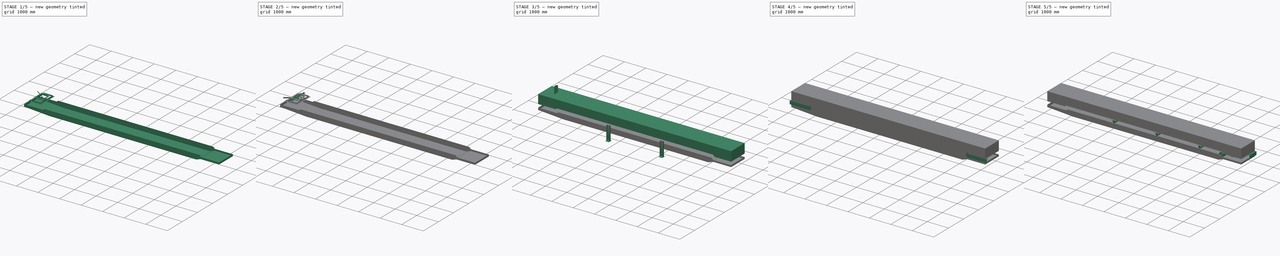
[diagram: build sequence overview — one tinted view per stage of 5, left to right]
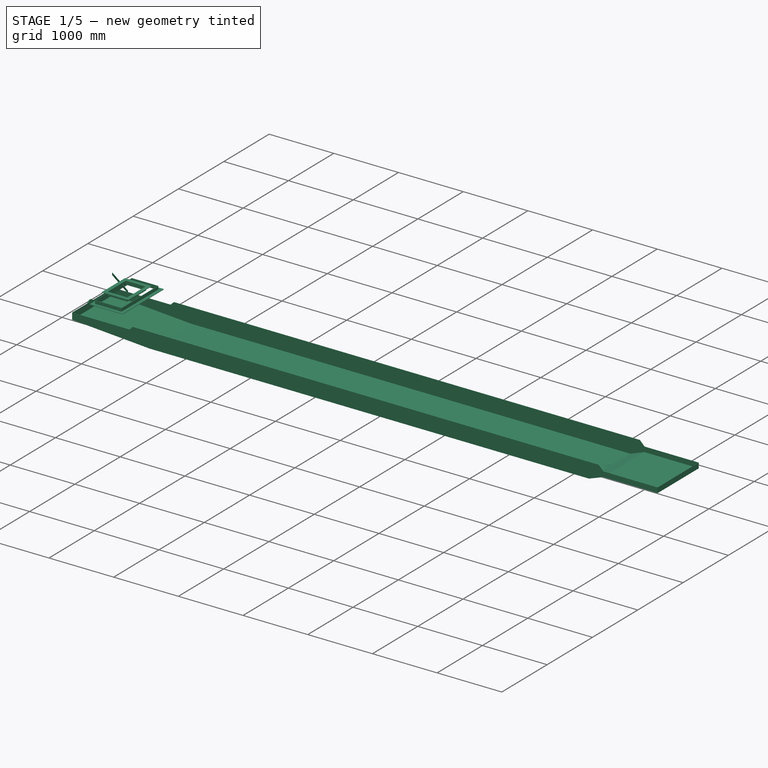
[diagram: stage 1 of 5 — iso view after this stage's code; geometry added in this stage tinted green]
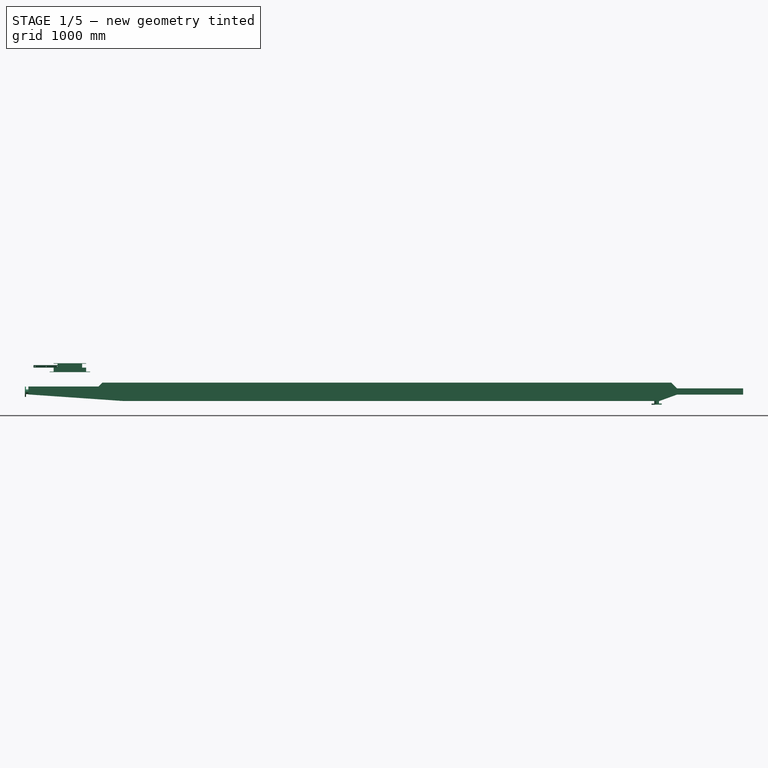
[diagram: stage 1 of 5 — front view after this stage's code; geometry added in this stage tinted green]
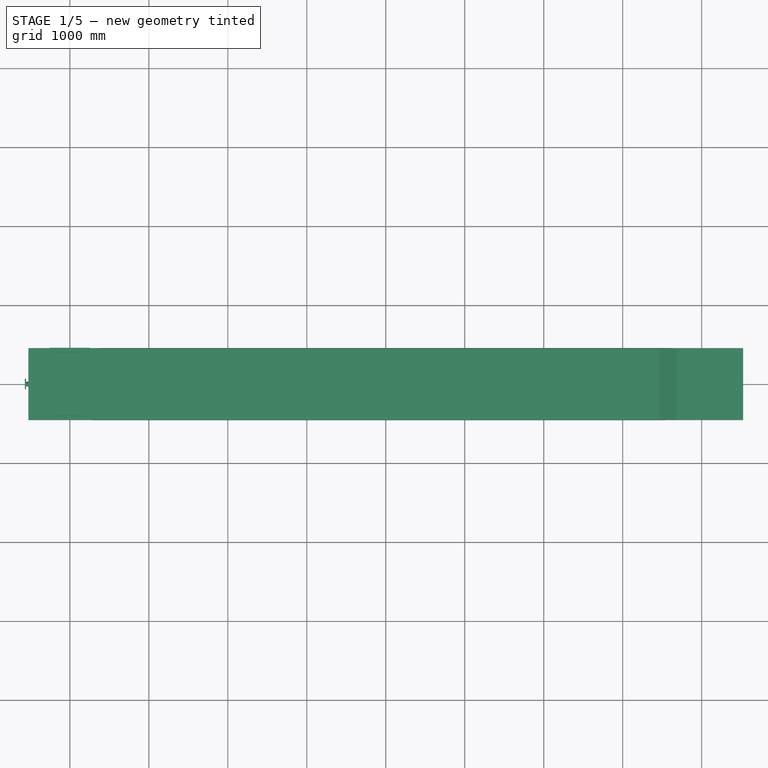
[diagram: stage 1 of 5 — top view after this stage's code; geometry added in this stage tinted green]
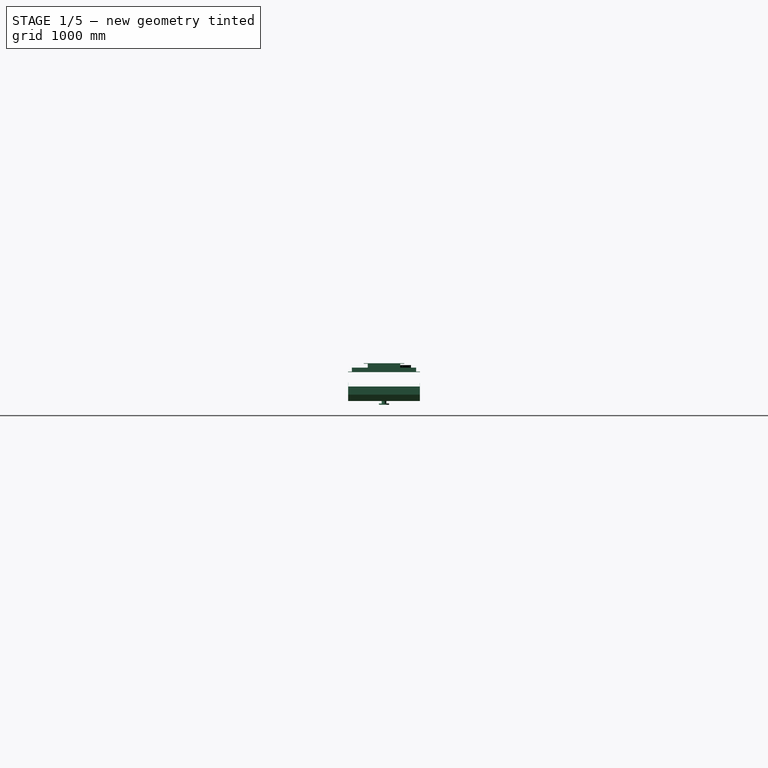
[diagram: stage 1 of 5 — right view after this stage's code; geometry added in this stage tinted green]
FCSTD DOCUMENT  (FreeCAD 1.0R39285 (Git))
Label: BeltCv600BAssy_M
License: All rights reserved
objects: Sketcher::SketchObject×41, App::Part×25, Part::FeaturePython×21, Part::Extrusion×20, PartDesign::Pad×12, Part::MultiFuse×10, Part::Feature×9, PartDesign::Body×9, Part::Mirroring×8, Spreadsheet::Sheet×6, Part::Cut×6, PartDesign::Pocket×5, Part::Sweep×4, PartDesign::LinearPattern×3, Part::Compound×2, PartDesign::Mirrored×2, PartDesign::Chamfer×1
note: 233 computed .brp shape members not serialized (recipe doc carries the construction recipe); baked Part::Feature solids carry a one-line shape summary decoded from their .brp

FEATURE [Sketcher::SketchObject] Sketch028
  ArcFitTolerance = 1e-06
  FullyConstrained = true
  MakeInternals = false
  Placement = pos=(0,0,0) rot=(1,0,0;1.5708rad)
  sketch-geometry (4):
    g0: LineSegment StartX=200 StartY=314 StartZ=0 EndX=500 EndY=314 EndZ=0
    g1: LineSegment StartX=500 StartY=314 StartZ=0 EndX=500 EndY=364 EndZ=0
    g2: LineSegment StartX=500 StartY=364 StartZ=0 EndX=200 EndY=364 EndZ=0
    g3: LineSegment StartX=200 StartY=364 StartZ=0 EndX=200 EndY=314 EndZ=0
  constraints (12):
    c: Coincident(g0,g1)
    c: Coincident(g1,g2)
    c: Coincident(g2,g3)
    c: Coincident(g3,g0)
    c: Horizontal(g0)
    c: Horizontal(g2)
    c: Vertical(g1)
    c: Vertical(g3)
    c: DistanceX(g2,g2) = 300
    c: DistanceY(g3,g3) = 50
    c: DistanceY(g-1,g2) = 364
    c: DistanceX(g-1,g2) = 200
FEATURE [Part::Feature] Self_Aligning_Carrier_600
  Placement = pos=(7000,0,-42) rot=(0,0,1;1.5708rad)
  mass = 67.63
  shape: bbox 308 x 890 x 416.2 mm, 193 faces, 4 solids (baked)
  expr: .Placement.Base.x = <<shtBeltCvAssy>>.C0 - 1000
FEATURE [App::Part] Part010  label="Pulleys"
  Group = -> [Array001,Array,Part006,Part004,CPM2_4145,Self_Aligning_Return_600,Self_Aligning_Carrier_600]
  Origin = -> Origin015
  Placement = pos=(0,0,-10) rot=(0,0,1;0rad)
FEATURE [App::Part] Part017  label="body"
  Group = -> [Part015,Part012,Part011,Part010]
  Origin = -> Origin021
  expr: .Placement.Rotation.Angle = -Spreadsheet001.k
FEATURE [Sketcher::SketchObject] Sketch029
  ArcFitTolerance = 1e-06
  FullyConstrained = true
  MakeInternals = false
  Placement = pos=(0,0,0) rot=(1,0,0;1.5708rad)
  expr: Constraints[29] = <<shtBeltCvAssy>>.C0 + 525
  sketch-geometry (11):
    g0: LineSegment StartX=-525 StartY=-239 StartZ=0 EndX=362 EndY=-239 EndZ=0
    g1: LineSegment StartX=362 StartY=-239 StartZ=0 EndX=412 EndY=-189 EndZ=0
    g2: LineSegment StartX=412 StartY=-189 StartZ=0 EndX=7615 EndY=-189 EndZ=0
    g3: LineSegment StartX=7615 StartY=-189 StartZ=0 EndX=7688 EndY=-262 EndZ=0
    g4: LineSegment StartX=7688 StartY=-262 StartZ=0 EndX=8525 EndY=-262 EndZ=0
    g5: LineSegment StartX=8525 StartY=-262 StartZ=0 EndX=8525 EndY=-342 EndZ=0
    g6: LineSegment StartX=-525 StartY=-339 StartZ=0 EndX=-525 EndY=-239 EndZ=0
    g7: LineSegment StartX=-525 StartY=-339 StartZ=0 EndX=675 EndY=-422 EndZ=0
    g8: LineSegment StartX=675 StartY=-422 StartZ=0 EndX=7465 EndY=-422 EndZ=0
    g9: LineSegment StartX=7465 StartY=-422 StartZ=0 EndX=7685 EndY=-342 EndZ=0
    g10: LineSegment StartX=7685 StartY=-342 StartZ=0 EndX=8525 EndY=-342 EndZ=0
  constraints (33):
    c: Horizontal(g0)
    c: Coincident(g0,g1)
    c: Coincident(g1,g2)
    c: Horizontal(g2)
    c: Coincident(g2,g3)
    c: Coincident(g3,g4)
    c: Horizontal(g4)
    c: Coincident(g4,g5)
    c: Vertical(g5)
    c: Coincident(g6,g0)
    c: Vertical(g6)
    c: Coincident(g6,g7)
    c: Coincident(g7,g8)
    c: Horizontal(g8)
    c: Coincident(g9,g10)
    c: Horizontal(g10)
    c: Coincident(g8,g9)
    c: DistanceY(g0,g-1) = 239
    c: DistanceY(g7,g-1) = 422
    c: DistanceX(g7,g7) = 1200
    c: DistanceY(g5,g5) = 80
    c: DistanceX(g9,g9) = 220
    c: Angle(g3,g-1) = 0.785398
    c: DistanceY(g3,g3) = 73
    c: DistanceX(g0,g0) = 887
    c: Angle(g-1,g1) = 0.785398
    c: DistanceX(g1,g1) = 50
    c: Coincident(g10,g5)
    c: DistanceX(g10,g10) = 840
    c: DistanceX(g-1,g5) = 8525
    c: DistanceY(g6,g6) = 100
    c: DistanceX(g0,g-1) = 525
    c: DistanceX(g4,g4) = 837
FEATURE [Part::Extrusion] Extrude027
  Base = -> Sketch029
  Dir = (0,-1,2e-16)
  DirMode = 2
  FaceMakerClass = Part::FaceMakerBullseye
  FaceMakerMode = 3
  LengthFwd = 910
  LengthRev = 0
  Solid = true
  Symmetric = true
FEATURE [App::Part] Part023  label="suport"
  Group = -> [Clone,Body004,Compound,Clone001,Sketch038,AngleSteel,Extrude030,Cut004]
  Origin = -> Origin029
  Placement = pos=(183.03,0,69.53) rot=(0,0,1;0rad)
FEATURE [Spreadsheet::Sheet] Spreadsheet
  cells = A1='beltWidth; B1(B0)=600; A2='angle; B2(angle)=20
FEATURE [Sketcher::SketchObject] Sketch039
  ArcFitTolerance = 1e-06
  AttachmentSupport = -> [XY_Plane031]
  FullyConstrained = false
  MakeInternals = false
  MapMode = 5
  expr: Constraints[10] = 55
  expr: Constraints[13] = (Spreadsheet.B0 + 100) / 2 - 8.5
  sketch-geometry (5):
    g0: LineSegment StartX=-456.522 StartY=341.5 StartZ=0 EndX=10.2615 EndY=14.6549 EndZ=0
    g1: LineSegment StartX=10.2615 StartY=14.6549 StartZ=0 EndX=6.82002 EndY=9.74 EndZ=0
    g2: LineSegment StartX=6.82002 StartY=9.74 StartZ=0 EndX=-459.963 EndY=336.585 EndZ=0
    g3: LineSegment StartX=-459.963 StartY=336.585 StartZ=0 EndX=-456.522 EndY=341.5 EndZ=0
    g4: LineSegment [constr] StartX=0 StartY=0 StartZ=0 EndX=9.37189 EndY=13.3844 EndZ=0
  constraints (14):
    c: Coincident(g0,g1)
    c: Coincident(g1,g2)
    c: Coincident(g2,g3)
    c: Coincident(g3,g0)
    c: Perpendicular(g3,g0)
    c: Parallel(g2,g0)
    c: Distance(g3,g3) = 6
    c: Angle(g2,g-1) = 0.610865
    c: Perpendicular(g0,g1)
    c: Coincident(g4,g-1)
    c: Angle(g-1,g4) = 0.959931
    c: PointOnObject(g1,g4)
    c: DistanceY(g-1,g1) = 9.74
    c: DistanceY(g-1,g0) = 341.5
FEATURE [PartDesign::Pad] Pad006
  Direction = (0,0,1)
  Length = 32
  Length2 = 10
  Profile = -> Sketch039
  ReferenceAxis = -> Sketch039 [N_Axis]
  Refine = true
  Suppressed = false
  Type = 0
FEATURE [Sketcher::SketchObject] Sketch040
  ArcFitTolerance = 1e-06
  AttachmentSupport = -> [Pad006]
  ExternalGeometry = -> [Pad006]
  FullyConstrained = true
  MakeInternals = false
  MapMode = 5
  Placement = pos=(6.82002,9.74,0) rot=(0.913318,-0.287968,-0.287968;1.66134rad)
  sketch-geometry (1):
    g0: Circle CenterX=-549.837 CenterY=16 CenterZ=0 NormalX=0 NormalY=0 NormalZ=1 AngleXU=0 Radius=6
  constraints (3):
    c: Diameter(g0) = 12
    c: DistanceY(g-1,g0) = 16
    c: Distance(g0,g-3) = 20
FEATURE [PartDesign::Pocket] Pocket004
  BaseFeature = -> Pad006
  Direction = (0.573576,0.819152,0)
  Length = 5
  Length2 = 5
  Profile = -> Sketch040
  ReferenceAxis = -> Sketch040 [N_Axis]
  Refine = true
  Suppressed = false
  Type = 1
FEATURE [PartDesign::LinearPattern] LinearPattern002
  BaseFeature = -> Pocket004
  Direction = -> Sketch040 [H_Axis]
  Length = 520
  Mode = 0
  Occurrences = 4
  Offset = 173.333
  Originals = -> [Pocket004]
  Refine = true
  Suppressed = false
  TransformMode = 0
  expr: Length = Spreadsheet.B0 - 80
FEATURE [PartDesign::Mirrored] Mirrored002
  BaseFeature = -> LinearPattern002
  MirrorPlane = -> XZ_Plane031
  Refine = true
  Suppressed = false
  TransformMode = 1
FEATURE [App::Part] Part024  label="Scraper"
  Group = -> [Part021,Part001,Part022,Part023,Spreadsheet,Part007,Mirror006,Mirror]
  Origin = -> Origin030
  Placement = pos=(622.6,0,-136.7) rot=(0,0,1;0rad)
  mass = 14.7
FEATURE [Sketcher::SketchObject] Sketch042
  ArcFitTolerance = 1e-06
  FullyConstrained = false
  MakeInternals = false
  Placement = pos=(0,0,0) rot=(1,0,0;1.5708rad)
  expr: Constraints[15] = <<shtBeltCvAssy>>.C0 + 522
  sketch-geometry (7):
    g0: LineSegment StartX=-522 StartY=-59 StartZ=0 EndX=-522 EndY=-336 EndZ=0
    g1: LineSegment StartX=-522 StartY=-336 StartZ=0 EndX=675.56 EndY=-419 EndZ=0
    g2: LineSegment StartX=675.56 StartY=-419 StartZ=0 EndX=7465.22 EndY=-419.729 EndZ=0
    g3: LineSegment StartX=7465.22 StartY=-419.729 StartZ=0 EndX=7683.78 EndY=-339 EndZ=0
    g4: LineSegment StartX=7683.78 StartY=-339 StartZ=0 EndX=8522 EndY=-339 EndZ=0
    g5: LineSegment StartX=8522 StartY=-339 StartZ=0 EndX=8522 EndY=-59 EndZ=0
    g6: LineSegment StartX=8522 StartY=-59 StartZ=0 EndX=-522 EndY=-59 EndZ=0
  constraints (19):
    c: Vertical(g0)
    c: Coincident(g0,g1)
    c: Coincident(g1,g2)
    c: Coincident(g2,g3)
    c: Coincident(g3,g4)
    c: Horizontal(g4)
    c: Coincident(g4,g5)
    c: Vertical(g5)
    c: Coincident(g5,g6)
    c: Coincident(g6,g0)
    c: Horizontal(g6)
    c: DistanceX(g0,g-1) = 522
    c: DistanceY(g0,g-1) = 336
    c: DistanceY(g1,g-1) = 419
    c: DistanceY(g4,g-1) = 339
    c: DistanceX(g-1,g5) = 8522
    c: DistanceY(g5,g5) = 280
    c: DistanceX(g4,g4) = 838.22
    c: DistanceX(g3,g3) = 218.56
FEATURE [Part::Extrusion] Extrude031
  Base = -> Sketch042
  Dir = (0,-1,2e-16)
  DirMode = 2
  FaceMakerClass = Part::FaceMakerBullseye
  FaceMakerMode = 3
  LengthFwd = 904
  LengthRev = 0
  Solid = true
  Symmetric = true
FEATURE [Part::Cut] Cut005
  Base = -> Extrude027
  Refine = true
  Tool = -> Extrude031
FEATURE [Part::FeaturePython] Single_flange_straight_pipe  # WARN: FeaturePython — macro-defined, semantics opaque (R4)
  L = 50
  Placement = pos=(-569.8,0,-305) rot=(0,0,1;0rad)
  dia = 6
  fittings = 06_Single_flange_straight_pipe
  material = 0
  standard = 0
  standard2 = 1
FEATURE [Part::FeaturePython] Single_flange_straight_pipe001  # WARN: FeaturePython — macro-defined, semantics opaque (R4)
  L = 50
  Placement = pos=(7430,0,-468.25) rot=(0,1,0;4.69494rad)
  dia = 6
  fittings = 06_Single_flange_straight_pipe
  material = 0
  standard = 0
  standard2 = 1
  expr: .Placement.Base.x = <<shtBeltCvAssy>>.C0 - 570
FEATURE [Sketcher::SketchObject] Sketch043
  ArcFitTolerance = 1e-06
  AttachmentSupport = -> [XZ_Plane033]
  FullyConstrained = true
  MakeInternals = false
  MapMode = 5
  Placement = pos=(0,0,0) rot=(1,0,0;1.5708rad)
  expr: Constraints[11] = Spreadsheet003.h0 + 10
  expr: Constraints[8] = Spreadsheet003.w0
  expr: Constraints[9] = Spreadsheet003.sita0
  sketch-geometry (5):
    g0: LineSegment StartX=-150 StartY=0 StartZ=0 EndX=150 EndY=0 EndZ=0
    g1: LineSegment StartX=150 StartY=0 StartZ=0 EndX=150 EndY=60 EndZ=0
    g2: LineSegment StartX=150 StartY=60 StartZ=0 EndX=-150 EndY=60 EndZ=0
    g3: LineSegment StartX=-150 StartY=60 StartZ=0 EndX=-150 EndY=0 EndZ=0
    g4: GeomPoint X=-1.15e-14 Y=60 Z=0
  constraints (12):
    c: PointOnObject(g0,g-1)
    c: Coincident(g0,g1)
    c: Vertical(g1)
    c: Coincident(g1,g2)
    c: Coincident(g2,g3)
    c: Coincident(g3,g0)
    c: Vertical(g3)
    c: Symmetric(g0,g0,g-2)
    c: DistanceX(g0,g0) = 300
    c: Angle(g0,g2) = 0
    c: Symmetric(g2,g2,g4)
    c: DistanceY(g-1,g4) = 60
FEATURE [PartDesign::Pad] Pad007
  Direction = (0,-1,2e-16)
  Length = 400
  Length2 = 10
  Midplane = true
  Placement = pos=(0,0,0) rot=(1,0,0;1.5708rad)
  Profile = -> Sketch043
  ReferenceAxis = -> Sketch043 [N_Axis]
  Refine = true
  Suppressed = false
  Type = 0
  expr: Length = Spreadsheet003.l0
FEATURE [PartDesign::Body] Body006  label="Body008"
  AllowCompound = false
  Group = -> [Sketch043,Pad007]
  Origin = -> Origin033
  Tip = -> Pad007
FEATURE [Sketcher::SketchObject] Sketch044
  ArcFitTolerance = 1e-06
  AttachmentSupport = -> [XZ_Plane034]
  FullyConstrained = true
  MakeInternals = false
  MapMode = 5
  Placement = pos=(0,0,0) rot=(1,0,0;1.5708rad)
  expr: .Constraints.sita = Spreadsheet003.sita0
  expr: Constraints[11] = Spreadsheet003.h0
  expr: Constraints[8] = Spreadsheet003.w0 + Spreadsheet003.t0 * 2
  sketch-geometry (5):
    g0: LineSegment StartX=-156 StartY=0 StartZ=0 EndX=156 EndY=0 EndZ=0
    g1: LineSegment StartX=156 StartY=0 StartZ=0 EndX=156 EndY=50 EndZ=0
    g2: LineSegment StartX=156 StartY=50 StartZ=0 EndX=-156 EndY=50 EndZ=0
    g3: LineSegment StartX=-156 StartY=50 StartZ=0 EndX=-156 EndY=0 EndZ=0
    g4: GeomPoint X=-6.2e-15 Y=50 Z=0
  constraints (12):
    c: PointOnObject(g0,g-1)
    c: Coincident(g0,g1)
    c: Vertical(g1)
    c: Coincident(g1,g2)
    c: Coincident(g2,g3)
    c: Coincident(g3,g0)
    c: Vertical(g3)
    c: Symmetric(g0,g0,g-2)
    c: DistanceX(g0,g0) = 312
    c: Angle(g0,g2) = 0  'sita'
    c: Symmetric(g2,g2,g4)
    c: DistanceY(g-1,g4) = 50
FEATURE [PartDesign::Pad] Pad008
  Direction = (0,-1,2e-16)
  Length = 412
  Length2 = 10
  Midplane = true
  Placement = pos=(0,0,0) rot=(1,0,0;1.5708rad)
  Profile = -> Sketch044
  ReferenceAxis = -> Sketch044 [N_Axis]
  Refine = true
  Suppressed = false
  Type = 0
  expr: Length = Spreadsheet003.l0 + Spreadsheet003.t0 * 2
FEATURE [Sketcher::SketchObject] Sketch045
  ArcFitTolerance = 1e-06
  AttachmentSupport = -> [Pad008]
  FullyConstrained = true
  MakeInternals = false
  MapMode = 5
  Placement = pos=(0,1.11e-14,50) rot=(0,0,1;3.14159rad)
  expr: .AttachmentOffset.Base.x = -<<shtInlet>>.h0 * sin(<<shtInlet>>.sita0) * cos(<<shtInlet>>.sita0)
  expr: Constraints[10] = Spreadsheet003.w0 + Spreadsheet003.t0 * 2 + Spreadsheet003.b0 * 2
  expr: Constraints[11] = Spreadsheet003.l0 + Spreadsheet003.t0 * 2 + Spreadsheet003.b0 * 2
  sketch-geometry (5):
    g0: LineSegment StartX=-206 StartY=-256 StartZ=0 EndX=206 EndY=-256 EndZ=0
    g1: LineSegment StartX=206 StartY=-256 StartZ=0 EndX=206 EndY=256 EndZ=0
    g2: LineSegment StartX=206 StartY=256 StartZ=0 EndX=-206 EndY=256 EndZ=0
    g3: LineSegment StartX=-206 StartY=256 StartZ=0 EndX=-206 EndY=-256 EndZ=0
    g4: GeomPoint [constr] X=0 Y=0 Z=0
  constraints (12):
    c: Coincident(g0,g1)
    c: Coincident(g1,g2)
    c: Coincident(g2,g3)
    c: Coincident(g3,g0)
    c: Horizontal(g0)
    c: Horizontal(g2)
    c: Vertical(g1)
    c: Vertical(g3)
    c: Symmetric(g2,g0,g4)
    c: Coincident(g4,g-1)
    c: DistanceX(g2,g2) = 412
    c: DistanceY(g3,g3) = 512
FEATURE [PartDesign::Pad] Pad009
  BaseFeature = -> Pad008
  Direction = (0,0,1)
  Length = 6
  Length2 = 10
  Placement = pos=(0,0,0) rot=(1,0,0;1.5708rad)
  Profile = -> Sketch045
  ReferenceAxis = -> Sketch045 [N_Axis]
  Refine = true
  Suppressed = false
  Type = 0
FEATURE [PartDesign::Body] Body007  label="Body009"
  AllowCompound = false
  Group = -> [Sketch044,Pad008,Sketch045,Pad009]
  Origin = -> Origin034
  Tip = -> Pad009
FEATURE [Part::Cut] Cut006
  Base = -> Body007
  Refine = true
  Tool = -> Body006
FEATURE [Spreadsheet::Sheet] Spreadsheet003  label="shtInlet"
  cells = A1='inlet; A2='w0; B2(w0)=300; A3='l0; B3(l0)=400; A4='t0; B4(t0)=6; A5='h0; B5(h0)=50; A6='b0; B6(b0)=50; A7='sita0; B7(sita0)=0
FEATURE [App::Part] Part025  label="inlet"
  Group = -> [Spreadsheet003,Body006,Body007,Cut006]
  Origin = -> Origin035
  Placement = pos=(500,0,327.9) rot=(0,0,1;0rad)
FEATURE [App::Part] Part  label="Cover"
  Group = -> [Sketch028,Sketch,Sketch030,Extrude025,Extrude028,Cut,Part025]
  Origin = -> Origin
  mass = 445.3
  expr: .Placement.Rotation.Angle = -<<shtBeltCvAssy>>.k
FEATURE [Sketcher::SketchObject] Sketch046
  ArcFitTolerance = 1e-06
  AttachmentSupport = -> [XZ_Plane036]
  FullyConstrained = true
  MakeInternals = false
  MapMode = 5
  Placement = pos=(0,0,0) rot=(1,0,0;1.5708rad)
  expr: Constraints[11] = Spreadsheet004.h0 + 10
  expr: Constraints[8] = Spreadsheet004.w0
  expr: Constraints[9] = Spreadsheet004.sita0
  sketch-geometry (5):
    g0: LineSegment StartX=-200 StartY=0 StartZ=0 EndX=200 EndY=0 EndZ=0
    g1: LineSegment StartX=200 StartY=0 StartZ=0 EndX=200 EndY=60 EndZ=0
    g2: LineSegment StartX=200 StartY=60 StartZ=0 EndX=-200 EndY=60 EndZ=0
    g3: LineSegment StartX=-200 StartY=60 StartZ=0 EndX=-200 EndY=0 EndZ=0
    g4: GeomPoint X=6.5e-15 Y=60 Z=0
  constraints (12):
    c: PointOnObject(g0,g-1)
    c: Coincident(g0,g1)
    c: Vertical(g1)
    c: Coincident(g1,g2)
    c: Coincident(g2,g3)
    c: Coincident(g3,g0)
    c: Vertical(g3)
    c: Symmetric(g0,g0,g-2)
    c: DistanceX(g0,g0) = 400
    c: Angle(g0,g2) = 0
    c: Symmetric(g2,g2,g4)
    c: DistanceY(g-1,g4) = 60
FEATURE [PartDesign::Pad] Pad003
  Direction = (0,-1,2e-16)
  Length = 800
  Length2 = 10
  Midplane = true
  Placement = pos=(0,0,0) rot=(1,0,0;1.5708rad)
  Profile = -> Sketch046
  ReferenceAxis = -> Sketch046 [N_Axis]
  Refine = true
  Suppressed = false
  Type = 0
  expr: Length = Spreadsheet004.l0
FEATURE [PartDesign::Body] Body002
  AllowCompound = false
  Group = -> [Sketch046,Pad003]
  Origin = -> Origin036
  Tip = -> Pad003
FEATURE [Sketcher::SketchObject] Sketch047
  ArcFitTolerance = 1e-06
  AttachmentSupport = -> [XZ_Plane004]
  FullyConstrained = true
  MakeInternals = false
  MapMode = 5
  Placement = pos=(0,0,0) rot=(1,0,0;1.5708rad)
  expr: .Constraints.sita = Spreadsheet004.sita0
  expr: Constraints[11] = Spreadsheet004.h0
  expr: Constraints[8] = Spreadsheet004.w0 + Spreadsheet004.t0 * 2
  sketch-geometry (5):
    g0: LineSegment StartX=-206 StartY=0 StartZ=0 EndX=206 EndY=0 EndZ=0
    g1: LineSegment StartX=206 StartY=0 StartZ=0 EndX=206 EndY=50 EndZ=0
    g2: LineSegment StartX=206 StartY=50 StartZ=0 EndX=-206 EndY=50 EndZ=0
    g3: LineSegment StartX=-206 StartY=50 StartZ=0 EndX=-206 EndY=0 EndZ=0
    g4: GeomPoint X=-6.4e-15 Y=50 Z=0
  constraints (12):
    c: PointOnObject(g0,g-1)
    c: Coincident(g0,g1)
    c: Vertical(g1)
    c: Coincident(g1,g2)
    c: Coincident(g2,g3)
    c: Coincident(g3,g0)
    c: Vertical(g3)
    c: Symmetric(g0,g0,g-2)
    c: DistanceX(g0,g0) = 412
    c: Angle(g0,g2) = 0  'sita'
    c: Symmetric(g2,g2,g4)
    c: DistanceY(g-1,g4) = 50
FEATURE [PartDesign::Pad] Pad010
  Direction = (0,-1,2e-16)
  Length = 812
  Length2 = 10
  Midplane = true
  Placement = pos=(0,0,0) rot=(1,0,0;1.5708rad)
  Profile = -> Sketch047
  ReferenceAxis = -> Sketch047 [N_Axis]
  Refine = true
  Suppressed = false
  Type = 0
  expr: Length = Spreadsheet004.l0 + Spreadsheet004.t0 * 2
FEATURE [Sketcher::SketchObject] Sketch048
  ArcFitTolerance = 1e-06
  AttachmentSupport = -> [Pad010]
  FullyConstrained = true
  MakeInternals = false
  MapMode = 5
  Placement = pos=(0,1.11e-14,50) rot=(0,0,1;3.14159rad)
  expr: .AttachmentOffset.Base.x = -<<shtOutlet>>.h0 * sin(<<shtOutlet>>.sita0) * cos(<<shtOutlet>>.sita0)
  expr: Constraints[10] = (Spreadsheet004.w0 + Spreadsheet004.t0 * 2 + Spreadsheet004.b0 * 2) / cos(Spreadsheet004.sita0)
  expr: Constraints[11] = Spreadsheet004.l0 + Spreadsheet004.t0 * 2 + Spreadsheet004.b0 * 2
  sketch-geometry (5):
    g0: LineSegment StartX=-256 StartY=-456 StartZ=0 EndX=256 EndY=-456 EndZ=0
    g1: LineSegment StartX=256 StartY=-456 StartZ=0 EndX=256 EndY=456 EndZ=0
    g2: LineSegment StartX=256 StartY=456 StartZ=0 EndX=-256 EndY=456 EndZ=0
    g3: LineSegment StartX=-256 StartY=456 StartZ=0 EndX=-256 EndY=-456 EndZ=0
    g4: GeomPoint [constr] X=0 Y=0 Z=0
  constraints (12):
    c: Coincident(g0,g1)
    c: Coincident(g1,g2)
    c: Coincident(g2,g3)
    c: Coincident(g3,g0)
    c: Horizontal(g0)
    c: Horizontal(g2)
    c: Vertical(g1)
    c: Vertical(g3)
    c: Symmetric(g2,g0,g4)
    c: Coincident(g4,g-1)
    c: DistanceX(g2,g2) = 512
    c: DistanceY(g3,g3) = 912
FEATURE [PartDesign::Pad] Pad011
  BaseFeature = -> Pad010
  Direction = (0,0,1)
  Length = 6
  Length2 = 10
  Placement = pos=(0,0,0) rot=(1,0,0;1.5708rad)
  Profile = -> Sketch048
  ReferenceAxis = -> Sketch048 [N_Axis]
  Refine = true
  Suppressed = false
  Type = 0
FEATURE [PartDesign::Body] Body008  label="Body010"
  AllowCompound = false
  Group = -> [Sketch047,Pad010,Sketch048,Pad011]
  Origin = -> Origin004
  Tip = -> Pad011
FEATURE [Part::Cut] Cut001
  Base = -> Body008
  Placement = pos=(0,0,0) rot=(0,1,0;3.14159rad)
  Refine = true
  Tool = -> Body002
FEATURE [Spreadsheet::Sheet] Spreadsheet004  label="shtOutlet"
  cells = A1='outlet; A2='w0; B2(w0)=400; A3='l0; B3(l0)=800; A4='t0; B4(t0)=6; A5='h0; B5(h0)=50; A6='b0; B6(b0)=50; A7='sita0; B7(sita0)=0
FEATURE [App::Part] Part026  label="outlet"
  Group = -> [Spreadsheet004,Body002,Body008,Cut001]
  Origin = -> Origin005
  Placement = pos=(8300,0,-341) rot=(0,0,1;0rad)
  expr: .Placement.Base.x = <<shtBeltCvAssy>>.C0 + 300
FEATURE [App::Part] Part020  label="waterReceptacle"
  Group = -> [Sketch031,Extrude027,Sketch029,Extrude031,Sketch042,Cut005,Single_flange_straight_pipe,Single_flange_straight_pipe001,Part026]
  Origin = -> Origin024
  mass = 281.06
  expr: .Placement.Rotation.Angle = -<<shtBeltCvAssy>>.k
FEATURE [App::Part] Part003  label="600B_motorpulley"
  Group = -> [Spreadsheet001,Part017,Part019,Part,Part020,Part024]
  Origin = -> Origin007
  Placement = pos=(0,0,-50) rot=(0,1,0;0rad)
  expr: .Placement.Base.z = <<shtBeltCvAssy>>.Ht - 800
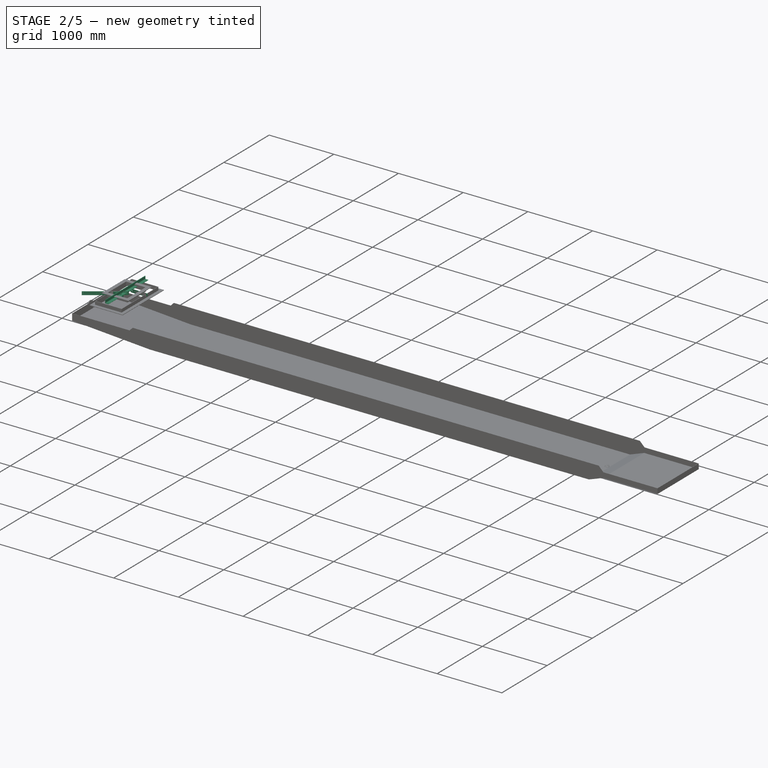
[diagram: stage 2 of 5 — iso view after this stage's code; geometry added in this stage tinted green]
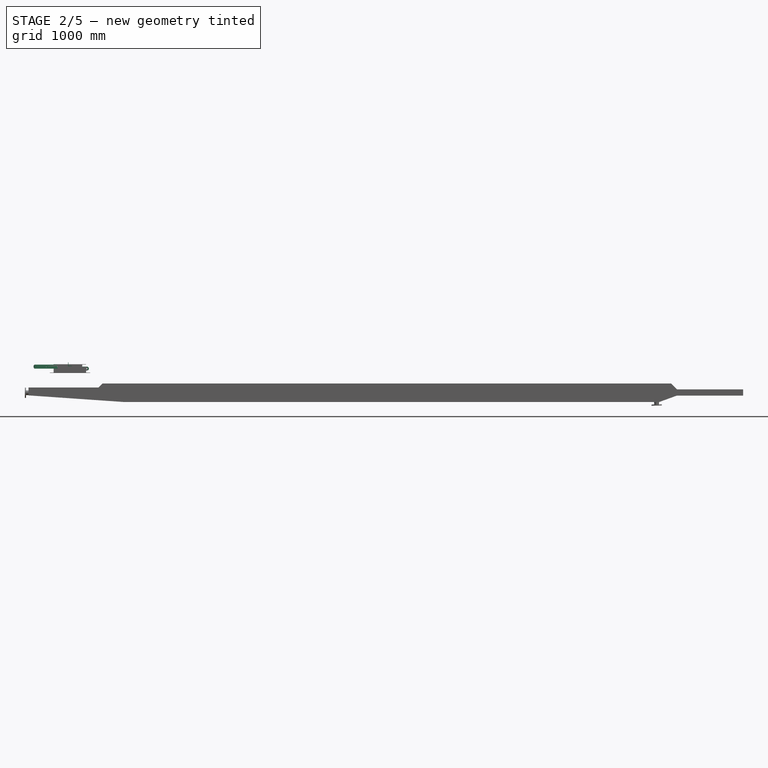
[diagram: stage 2 of 5 — front view after this stage's code; geometry added in this stage tinted green]
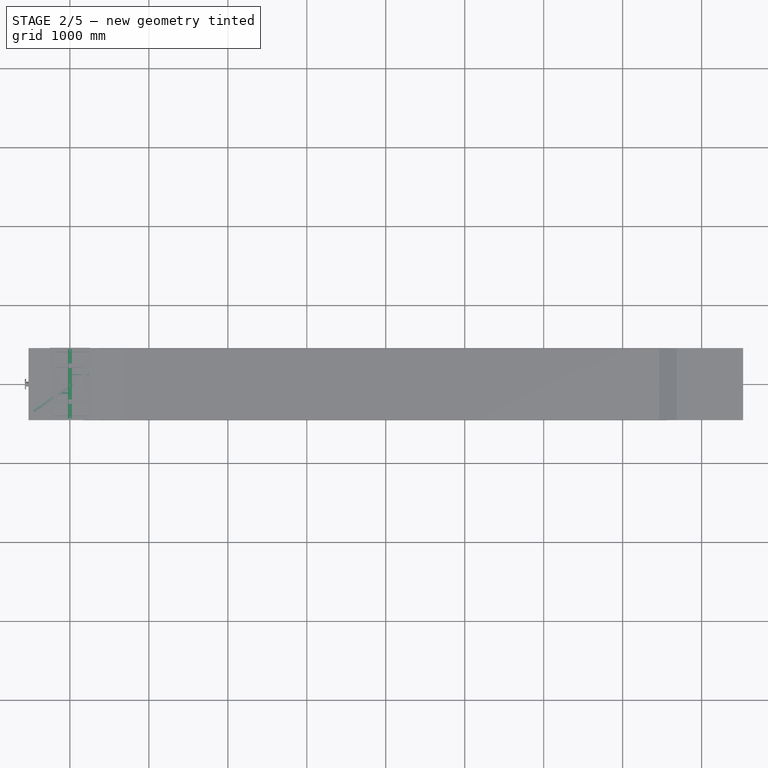
[diagram: stage 2 of 5 — top view after this stage's code; geometry added in this stage tinted green]
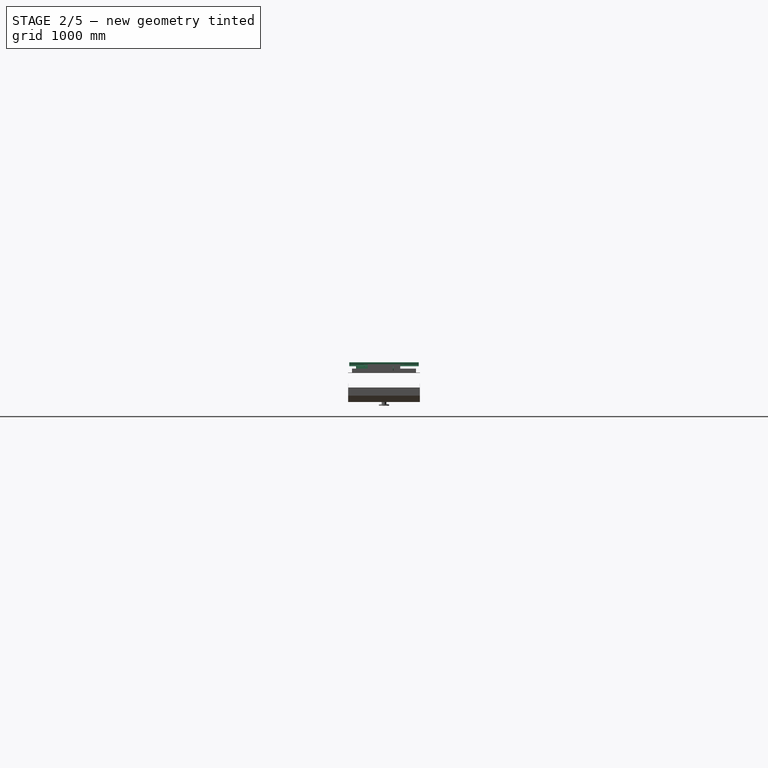
[diagram: stage 2 of 5 — right view after this stage's code; geometry added in this stage tinted green]
FEATURE [Sketcher::SketchObject] Sketch031
  ArcFitTolerance = 1e-06
  AttachmentSupport = -> [Part017]
  FullyConstrained = true
  MakeInternals = false
  MapMode = 3
  Placement = pos=(0,0,0) rot=(1,0,0;1.5708rad)
  expr: Constraints[15] = <<shtBeltCvAssy>>.C0 + 522
  sketch-geometry (7):
    g0: LineSegment StartX=-522 StartY=-100 StartZ=0 EndX=-522 EndY=-320 EndZ=0
    g1: LineSegment StartX=-522 StartY=-320 StartZ=0 EndX=675 EndY=-417.082 EndZ=0
    g2: LineSegment StartX=675 StartY=-417.082 StartZ=0 EndX=7465 EndY=-419.073 EndZ=0
    g3: LineSegment StartX=7465 StartY=-419.073 StartZ=0 EndX=7685 EndY=-339 EndZ=0
    g4: LineSegment StartX=7685 StartY=-339 StartZ=0 EndX=8522 EndY=-339 EndZ=0
    g5: LineSegment StartX=8522 StartY=-339 StartZ=0 EndX=8522 EndY=-100 EndZ=0
    g6: LineSegment StartX=8522 StartY=-100 StartZ=0 EndX=-522 EndY=-100 EndZ=0
  constraints (21):
    c: Vertical(g0)
    c: Coincident(g0,g1)
    c: Coincident(g1,g2)
    c: Coincident(g2,g3)
    c: Coincident(g3,g4)
    c: Horizontal(g4)
    c: Coincident(g4,g5)
    c: Coincident(g5,g6)
    c: Coincident(g6,g0)
    c: Horizontal(g6)
    c: DistanceY(g0,g0) = 220
    c: DistanceX(g0,g-1) = 522
    c: DistanceY(g0,g-1) = 320
    c: DistanceX(g-1,g1) = 675
    c: Vertical(g5)
    c: DistanceX(g-1,g5) = 8522
    c: DistanceY(g4,g-1) = 339
    c: DistanceX(g4,g4) = 837
    c: DistanceX(g3,g3) = 220
    c: Angle(g4,g3) = 0.349066
    c: Angle(g1,g2) = 0.0806342
FEATURE [Spreadsheet::Sheet] Parts_List
  cells = A1='No; B1='Name; C1='Standard; D1='Count; E1='Unit[kg]; F1='Mass[kg]; A2=1; B2='CPM2_4145; D2=1; E2=545.64; F2=545.64; A3=2; B3='takeUpAssy20d001; D3=1; E3=72.97; F3=72.97; A4=3; B4='bendPulley; D4=1; E4=46.78; F4=46.78; A5=4; B5='Skirt; D5=1; E5=58.03; F5=58.03; A6=5; B6='Frame; D6=1; E6=180.08; F6=180.08; A7=6; B7='Belt; D7=1; E7=100.67; F7=100.67; A8=7; B8='Post; D8=1; E8=110.96; F8=110.96; A9=8; B9='Carrier_600; D9=6; E9=46.5; F9=279; A10=9; B10='Return_600; D10=3; E10=41.05; F10=123.16; A11=10; B11='Self_Aligning_Return_600; D11=1; E11=68.05; F11=68.05; A12=11; B12='Cover; D12=1; E12=441.27; F12=441.27; A13=12; B13='Self_Aligning_Carrier_600; D13=1; E13=67.63; F13=67.63; A14=13; B14='WaterTray; D14=1; E14=345.82; F14=345.82; F15=2125.43717288626
FEATURE [Sketcher::SketchObject] Sketch032
  ArcFitTolerance = 1e-06
  AttachmentSupport = -> [XY_Plane025]
  FullyConstrained = false
  MakeInternals = false
  MapMode = 5
  sketch-geometry (6):
    g0: LineSegment StartX=-447.461 StartY=354.822 StartZ=0 EndX=19.5016 EndY=27.8512 EndZ=0
    g1: ArcOfCircle CenterX=0 CenterY=0 CenterZ=0 NormalX=0 NormalY=0 NormalZ=1 AngleXU=0 Radius=34 StartAngle=0 EndAngle=0.959931
    g2: ArcOfCircle CenterX=0 CenterY=0 CenterZ=0 NormalX=0 NormalY=0 NormalZ=1 AngleXU=0 Radius=28 StartAngle=0 EndAngle=0.959931
    g3: LineSegment StartX=16.0601 StartY=22.9363 StartZ=0 EndX=-450.902 EndY=349.907 EndZ=0
    g4: LineSegment StartX=-450.902 StartY=349.907 StartZ=0 EndX=-447.461 EndY=354.822 EndZ=0
    g5: LineSegment StartX=28 StartY=0 StartZ=0 EndX=34 EndY=0 EndZ=0
  constraints (15):
    c: Tangent(g0,g1) = 1.5708
    c: Coincident(g3,g4)
    c: Coincident(g4,g0)
    c: Coincident(g2,g1)
    c: Coincident(g2,g-1)
    c: Tangent(g2,g3) = -1.5708
    c: Perpendicular(g4,g3)
    c: Parallel(g0,g3)
    c: Radius(g1) = 34
    c: Horizontal(g5)
    c: PointOnObject(g5,g-1)
    c: Coincident(g1,g5)
    c: Coincident(g2,g5)
    c: Angle(g3,g-1) = 0.610865
    c: Distance(g4,g4) = 6
FEATURE [PartDesign::Pad] Pad
  Direction = (0,0,1)
  Length = 50
  Length2 = 10
  Profile = -> Sketch032
  ReferenceAxis = -> Sketch032 [N_Axis]
  Refine = true
  Suppressed = false
  Type = 0
FEATURE [Sketcher::SketchObject] Sketch033
  ArcFitTolerance = 1e-06
  AttachmentSupport = -> [XY_Plane025]
  FullyConstrained = false
  MakeInternals = false
  MapMode = 5
  sketch-geometry (9):
    g0: LineSegment StartX=-94.6058 StartY=107.75 StartZ=0 EndX=-103.175 EndY=113.75 EndZ=0
    g1: LineSegment StartX=-103.175 StartY=113.75 StartZ=0 EndX=-1.74057 EndY=113.75 EndZ=0
    g2: LineSegment StartX=-1.74057 StartY=113.75 StartZ=0 EndX=-1.74057 EndY=107.75 EndZ=0
    g3: LineSegment StartX=-1.74057 StartY=107.75 StartZ=0 EndX=-94.6058 EndY=107.75 EndZ=0
    g4: LineSegment StartX=-113.172 StartY=120.75 StartZ=0 EndX=-121.741 EndY=126.75 EndZ=0
    g5: LineSegment StartX=-121.741 StartY=126.75 StartZ=0 EndX=-1.74057 EndY=126.75 EndZ=0
    g6: LineSegment StartX=-1.74057 StartY=126.75 StartZ=0 EndX=-1.74057 EndY=120.75 EndZ=0
    g7: LineSegment StartX=-1.74057 StartY=120.75 StartZ=0 EndX=-113.172 EndY=120.75 EndZ=0
    g8: LineSegment [constr] StartX=-135.198 StartY=117.25 StartZ=0 EndX=130.377 EndY=117.25 EndZ=0
  constraints (26):
    c: Coincident(g0,g1)
    c: Horizontal(g1)
    c: Coincident(g1,g2)
    c: Vertical(g2)
    c: Coincident(g2,g3)
    c: Coincident(g3,g0)
    c: Horizontal(g3)
    c: Coincident(g4,g5)
    c: Horizontal(g5)
    c: Coincident(g5,g6)
    c: Vertical(g6)
    c: Coincident(g6,g7)
    c: Coincident(g7,g4)
    c: Horizontal(g7)
    c: DistanceX(g5,g5) = 120
    c: Parallel(g4,g-3)
    c: Horizontal(g8)
    c: Distance(g8,g-1) = 117.25
    c: DistanceY(g6,g6) = 6
    c: DistanceY(g2,g2) = 6
    c: Vertical(g1,g6)
    c: PointOnObject(g4,g-3)
    c: Distance(g6,g8) = 3.5
    c: PointOnObject(g0,g-3)
    c: Parallel(g0,g-3)
    c: Distance(g1,g8) = 3.5
FEATURE [PartDesign::Pad] Pad001
  BaseFeature = -> Pad
  Direction = (0,0,1)
  Length = 50
  Length2 = 10
  Profile = -> Sketch033
  ReferenceAxis = -> Sketch033 [N_Axis]
  Refine = true
  Suppressed = false
  Type = 0
FEATURE [PartDesign::Chamfer] Chamfer
  Angle = 45
  Base = -> Pad001 [Edge28,Edge40,Edge39,Edge27]
  BaseFeature = -> Pad001
  ChamferType = 0
  FlipDirection = false
  Refine = true
  Size = 5
  Size2 = 1
  SupportTransform = false
  Suppressed = false
  UseAllEdges = false
FEATURE [Sketcher::SketchObject] Sketch034
  ArcFitTolerance = 1e-06
  AttachmentSupport = -> [Chamfer]
  ExternalGeometry = -> [Chamfer]
  FullyConstrained = false
  MakeInternals = false
  MapMode = 5
  Placement = pos=(0,126.75,0) rot=(0,0.707107,0.707107;3.14159rad)
  sketch-geometry (1):
    g0: Circle CenterX=26.7406 CenterY=25.2413 CenterZ=0 NormalX=0 NormalY=0 NormalZ=1 AngleXU=0 Radius=6
  constraints (2):
    c: Diameter(g0) = 12
    c: Distance(g0,g-3) = 25
FEATURE [PartDesign::Pocket] Pocket
  BaseFeature = -> Chamfer
  Direction = (0,-1,2e-16)
  Length = 30
  Length2 = 5
  Profile = -> Sketch034
  ReferenceAxis = -> Sketch034 [N_Axis]
  Refine = true
  Suppressed = false
  Type = 0
FEATURE [PartDesign::Body] Body001
  AllowCompound = false
  Group = -> [Sketch004,Pad002,Sketch006,Pocket002,Sketch035,Pocket003,LinearPattern001,Mirrored001]
  Origin = -> Origin002
  Placement = pos=(0,0,-20) rot=(0,0,1;0rad)
  Tip = -> Mirrored001
FEATURE [App::Part] Part001  label="rubberSheet"
  Group = -> [Body001]
  Origin = -> Origin003
FEATURE [Sketcher::SketchObject] Sketch036
  ArcFitTolerance = 1e-06
  AttachmentSupport = -> [XZ_Plane026]
  FullyConstrained = true
  MakeInternals = false
  MapMode = 5
  Placement = pos=(0,0,0) rot=(1,0,0;1.5708rad)
  sketch-geometry (6):
    g0: LineSegment StartX=-4.29e-14 StartY=25 StartZ=0 EndX=215 EndY=25 EndZ=0
    g1: ArcOfCircle CenterX=215 CenterY=0 CenterZ=0 NormalX=0 NormalY=0 NormalZ=1 AngleXU=0 Radius=25 StartAngle=4.71239 EndAngle=7.85398
    g2: LineSegment StartX=215 StartY=-25 StartZ=0 EndX=2.84e-14 EndY=-25 EndZ=0
    g3: ArcOfCircle CenterX=0 CenterY=0 CenterZ=0 NormalX=0 NormalY=0 NormalZ=1 AngleXU=0 Radius=25 StartAngle=1.5708 EndAngle=4.71239
    g4: Circle CenterX=0 CenterY=0 CenterZ=0 NormalX=0 NormalY=0 NormalZ=1 AngleXU=0 Radius=7
    g5: Circle CenterX=215 CenterY=0 CenterZ=0 NormalX=0 NormalY=0 NormalZ=1 AngleXU=0 Radius=7
  constraints (13):
    c: PointOnObject(g0,g-2)
    c: Tangent(g0,g1) = 1.5708
    c: PointOnObject(g2,g-2)
    c: Tangent(g2,g3) = 1.5708
    c: Tangent(g1,g2) = 1.5708
    c: Tangent(g3,g0) = 1.5708
    c: Coincident(g3,g-1)
    c: DistanceX(g0,g0) = 215
    c: Distance(g0,g2) = 50
    c: Coincident(g4,g3)
    c: Coincident(g5,g1)
    c: Diameter(g4) = 14
    c: Diameter(g5) = 14
FEATURE [PartDesign::Pad] Pad004
  Direction = (0,-1,2e-16)
  Length = 6
  Length2 = 10
  Placement = pos=(0,0,0) rot=(1,0,0;1.5708rad)
  Profile = -> Sketch036
  ReferenceAxis = -> Sketch036 [N_Axis]
  Refine = true
  Suppressed = false
  Type = 0
FEATURE [PartDesign::Body] Body003
  AllowCompound = false
  Group = -> [Sketch036,Pad004]
  Origin = -> Origin026
  Placement = pos=(0,-114.25,0) rot=(0,0,1;0rad)
  Tip = -> Pad004
FEATURE [Part::Mirroring] Mirror005  label="Body003 (mirrored)"
  Base = (-500,0,0)
  Normal = (0,-1,0)
  Source = -> Body003
FEATURE [App::Part] Part022  label="LinkPlate"
  Group = -> [Mirror005,Body003,Fusion014]
  Origin = -> Origin027
  Placement = pos=(-27,0,25) rot=(0,1,0;6.07375rad)
  expr: .Placement.Base.z = 25
  expr: .Placement.Rotation.Angle = -Spreadsheet.angle
FEATURE [Sketcher::SketchObject] Sketch037
  ArcFitTolerance = 1e-06
  AttachmentSupport = -> [XZ_Plane028]
  FullyConstrained = true
  MakeInternals = false
  MapMode = 5
  Placement = pos=(0,0,0) rot=(1,0,0;1.5708rad)
  sketch-geometry (5):
    g0: Circle CenterX=0 CenterY=0 CenterZ=0 NormalX=0 NormalY=0 NormalZ=1 AngleXU=0 Radius=7
    g1: ArcOfCircle CenterX=0 CenterY=0 CenterZ=0 NormalX=0 NormalY=0 NormalZ=1 AngleXU=0 Radius=25 StartAngle=3.14159 EndAngle=6.28319
    g2: LineSegment StartX=-25 StartY=3.1e-15 StartZ=0 EndX=-25 EndY=30 EndZ=0
    g3: LineSegment StartX=-25 StartY=30 StartZ=0 EndX=25 EndY=30 EndZ=0
    g4: LineSegment StartX=25 StartY=30 StartZ=0 EndX=25 EndY=-7.1e-15 EndZ=0
  constraints (13):
    c: Coincident(g0,g-1)
    c: Coincident(g1,g0)
    c: PointOnObject(g1,g-1)
    c: PointOnObject(g1,g-1)
    c: Tangent(g1,g2) = 1.5708
    c: Coincident(g2,g3)
    c: Horizontal(g3)
    c: Coincident(g3,g4)
    c: Coincident(g4,g1)
    c: Vertical(g4)
    c: DistanceX(g3,g3) = 50
    c: DistanceY(g-1,g2) = 30
    c: Diameter(g0) = 14
FEATURE [PartDesign::Pad] Pad005
  Direction = (0,-1,2e-16)
  Length = 6
  Length2 = 10
  Midplane = true
  Placement = pos=(0,0,0) rot=(1,0,0;1.5708rad)
  Profile = -> Sketch037
  ReferenceAxis = -> Sketch037 [N_Axis]
  Refine = true
  Suppressed = false
  Type = 0
FEATURE [PartDesign::Body] Body004
  AllowCompound = false
  Group = -> [Sketch037,Pad005]
  Origin = -> Origin028
  Placement = pos=(0,7,0) rot=(0,0,1;0rad)
  Tip = -> Pad005
FEATURE [Part::FeaturePython] Clone  label="Body005"  # Draft clone (typed FeaturePython)
  AttacherType = Attacher::AttachEngine3D
  Fuse = false
  Objects = -> [Body004]
  Placement = pos=(0,-7,0) rot=(0,0,1;0rad)
  Scale = (1,1,1)
FEATURE [Part::Compound] Compound
  Links = -> [Body004,Clone]
  Placement = pos=(0,117.5,0) rot=(0,0,1;0rad)
FEATURE [Part::FeaturePython] Clone001  label="Compound001"  # Draft clone (typed FeaturePython)
  AttacherType = Attacher::AttachEngine3D
  Fuse = false
  Objects = -> [Compound]
  Placement = pos=(0,-117.5,0) rot=(0,0,1;0rad)
  Scale = (1,1,1)
FEATURE [Part::FeaturePython] AngleSteel  # WARN: FeaturePython — macro-defined, semantics opaque (R4)
  A = 50
  B = 50
  L = 880
  Placement = pos=(0,-440,55) rot=(1,0,0;4.71239rad)
  Solid = true
  g0 = 7.85
  mass = 3.89871
  size = 7
  standard = SS_Equal
  t = 6
  type = 00_Angle
  expr: .Placement.Base.y = -(Spreadsheet.B0 + 280) / 2
  expr: L = Spreadsheet.B0 + 280
FEATURE [Sketcher::SketchObject] Sketch038
  ArcFitTolerance = 1e-06
  AttachmentSupport = -> [AngleSteel]
  ExternalGeometry = -> [AngleSteel]
  FullyConstrained = true
  MakeInternals = false
  MapMode = 5
  Placement = pos=(0,-440,36) rot=(0,0,1;0rad)
  sketch-geometry (2):
    g0: Circle CenterX=5 CenterY=860 CenterZ=0 NormalX=0 NormalY=0 NormalZ=1 AngleXU=0 Radius=7.5
    g1: Circle CenterX=5 CenterY=20 CenterZ=0 NormalX=0 NormalY=0 NormalZ=1 AngleXU=0 Radius=7.5
  constraints (6):
    c: Diameter(g0) = 15
    c: Distance(g0,g-4) = 30
    c: Diameter(g1) = 15
    c: DistanceY(g-1,g1) = 20
    c: DistanceX(g-4,g1) = 30
    c: Distance(g0,g-3) = 20
FEATURE [Part::Extrusion] Extrude030
  Base = -> Sketch038
  Dir = (0,0,1)
  DirMode = 2
  FaceMakerClass = Part::FaceMakerBullseye
  FaceMakerMode = 3
  LengthFwd = 10
  LengthRev = 0
  Reversed = true
  Solid = true
  Symmetric = false
FEATURE [Part::Cut] Cut004
  Base = -> AngleSteel
  Refine = true
  Tool = -> Extrude030
FEATURE [PartDesign::Body] Body005  label="Body006"
  AllowCompound = false
  Group = -> [Sketch039,Pad006,Sketch040,Pocket004,LinearPattern002,Mirrored002]
  Origin = -> Origin031
  Placement = pos=(0,0,9) rot=(0,0,1;0rad)
  Tip = -> Mirrored002
FEATURE [App::Part] Part007  label="clampingPlate"
  Group = -> [Body005]
  Origin = -> Origin032
FEATURE [Sketcher::SketchObject] Sketch041
  ArcFitTolerance = 1e-06
  FullyConstrained = true
  MakeInternals = false
  MapMode = 5
  Placement = pos=(19.5016,27.8512,0) rot=(0.217607,0.690162,0.690162;2.71306rad)
  sketch-geometry (1):
    g0: Circle CenterX=550.056 CenterY=25 CenterZ=0 NormalX=0 NormalY=0 NormalZ=1 AngleXU=0 Radius=6
  constraints (3):
    c: Diameter(g0) = 12
    c: DistanceY(g-1,g0) = 25
    c: Distance(g0,g-3) = 20
FEATURE [PartDesign::Pocket] Pocket005
  BaseFeature = -> Pocket
  Direction = (-0.573576,-0.819152,-2e-16)
  Length = 5
  Length2 = 5
  Profile = -> Sketch041
  ReferenceAxis = -> Sketch041 [N_Axis]
  Refine = true
  Suppressed = false
  Type = 1
FEATURE [PartDesign::LinearPattern] LinearPattern
  BaseFeature = -> Pocket005
  Direction = -> Sketch041 [H_Axis]
  Length = 500
  Mode = 0
  Occurrences = 4
  Offset = 166.667
  Originals = -> [Pocket005]
  Refine = true
  Reversed = true
  Suppressed = false
  TransformMode = 0
FEATURE [PartDesign::Body] Body
  AllowCompound = false
  Group = -> [Sketch032,Pad,Sketch033,Pad001,Chamfer,Sketch034,Pocket,Sketch041,Pocket005,LinearPattern]
  Origin = -> Origin025
  Tip = -> LinearPattern
FEATURE [App::Part] Part021  label="Body007"
  Group = -> [Body]
  Origin = -> Origin001
FEATURE [Part::Mirroring] Mirror006  label="Body (mirrored)"
  Base = (-500,0,0)
  Normal = (0,-1,0)
  Source = -> Part021
FEATURE [Part::Mirroring] Mirror  label="clampingPlate (mirrored)"
  Base = (-500,0,0)
  Normal = (0,-1,0)
  Source = -> Part007
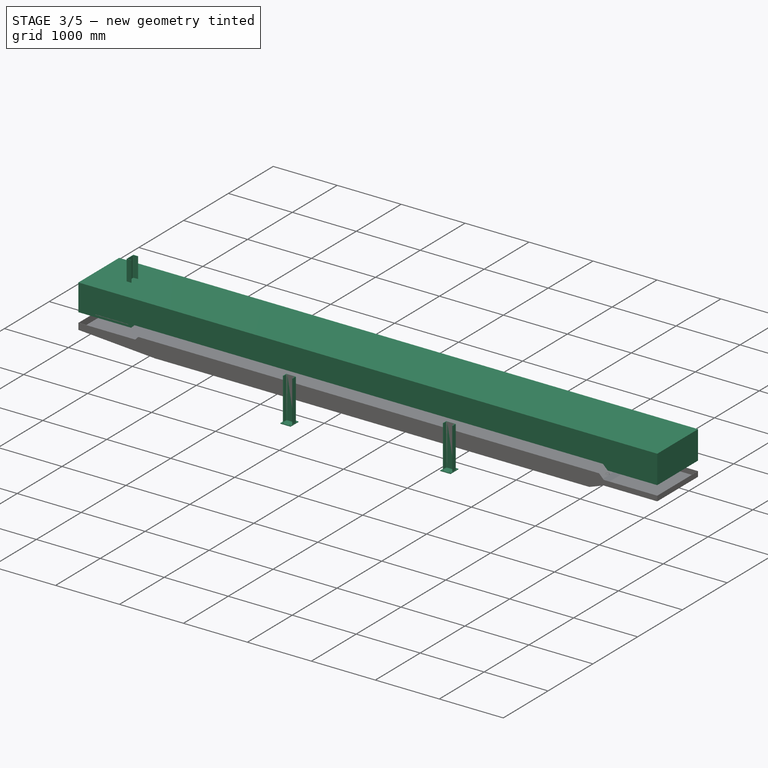
[diagram: stage 3 of 5 — iso view after this stage's code; geometry added in this stage tinted green]
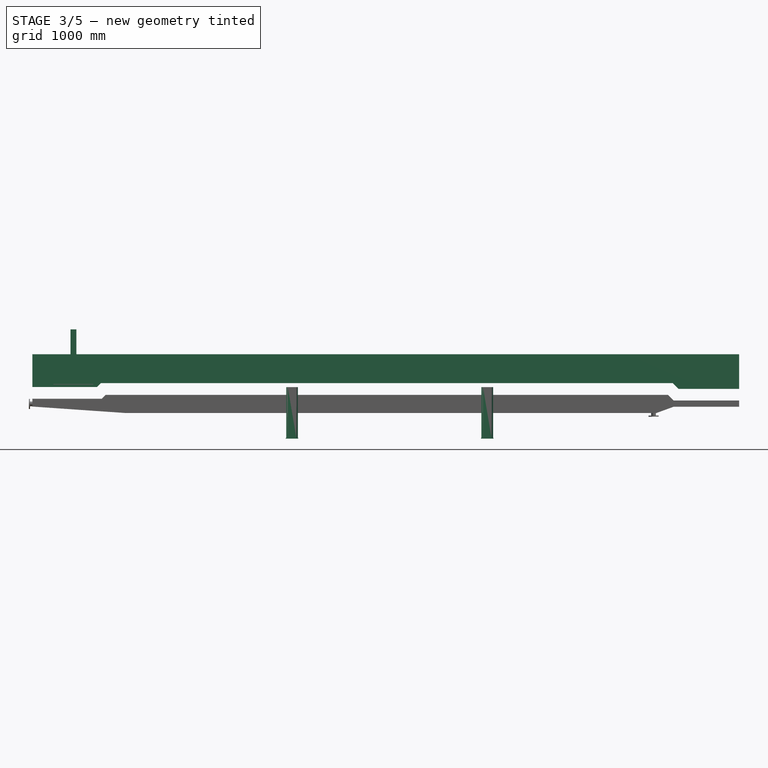
[diagram: stage 3 of 5 — front view after this stage's code; geometry added in this stage tinted green]
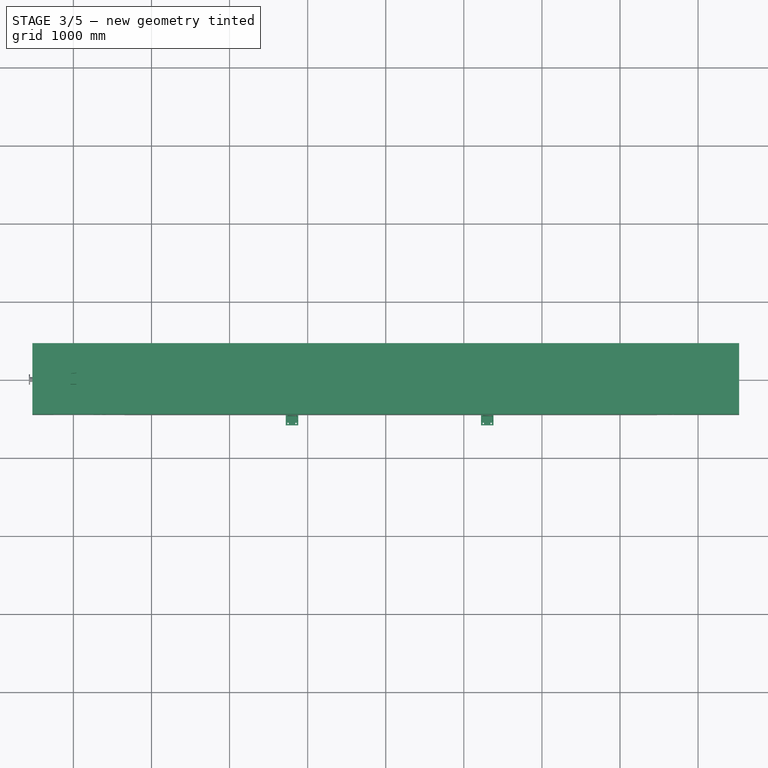
[diagram: stage 3 of 5 — top view after this stage's code; geometry added in this stage tinted green]
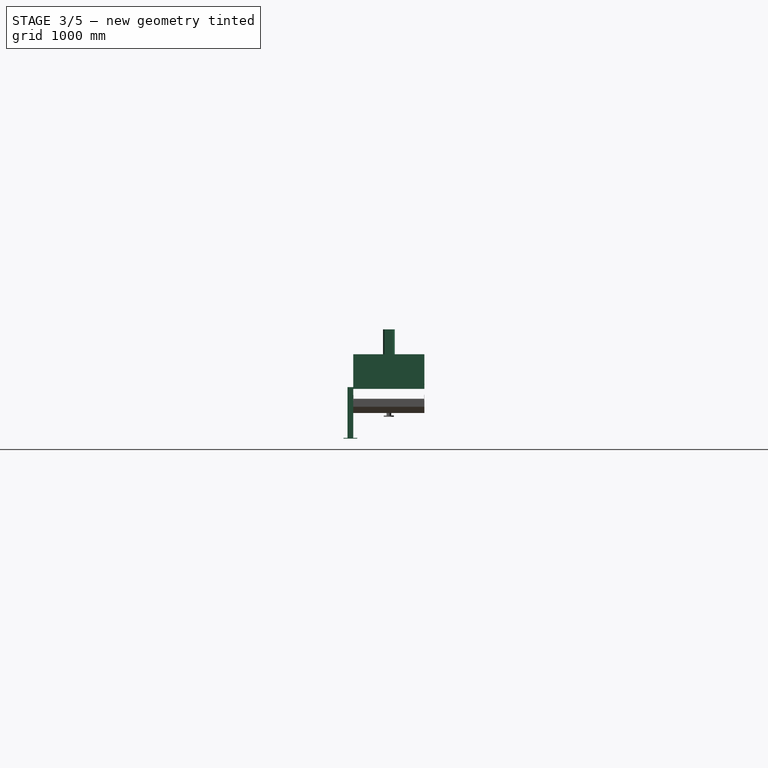
[diagram: stage 3 of 5 — right view after this stage's code; geometry added in this stage tinted green]
FEATURE [Part::FeaturePython] BasePlate002  # WARN: FeaturePython — macro-defined, semantics opaque (R4)
  B = 175
  D = 19
  H = 160
  b1 = 25
  h1 = 30
  sface = 0
FEATURE [Part::FeaturePython] Channel002  # WARN: FeaturePython — macro-defined, semantics opaque (R4)
  B = 75
  H = 150
  L = 650
  Solid = true
  g0 = 7.85
  mass = 10.9882
  size = 3
  standard = SS
  expr: L = str(Spreadsheet001.Ht - 100 + (Spreadsheet001.C0 - 200) * tan(Spreadsheet001.k))
FEATURE [Part::Extrusion] Extrude022
  Base = -> BasePlate002
  Dir = (0,0,1)
  DirMode = 2
  FaceMakerClass = Part::FaceMakerBullseye
  FaceMakerMode = 3
  LengthFwd = 10
  LengthRev = 0
  Solid = true
  Symmetric = false
FEATURE [Part::FeaturePython] BasePlate003  # WARN: FeaturePython — macro-defined, semantics opaque (R4)
  B = 175
  D = 19
  H = 160
  b1 = 25
  h1 = 30
  sface = 0
FEATURE [Part::Extrusion] Extrude023
  Base = -> BasePlate003
  Dir = (0,0,1)
  DirMode = 2
  FaceMakerClass = Part::FaceMakerBullseye
  FaceMakerMode = 3
  LengthFwd = 10
  LengthRev = 0
  Solid = true
  Symmetric = false
FEATURE [Part::FeaturePython] Channel003  # WARN: FeaturePython — macro-defined, semantics opaque (R4)
  B = 75
  H = 150
  L = 750
  Solid = true
  g0 = 7.85
  mass = 12.6787
  size = 3
  standard = SS
  expr: L = str(Spreadsheet001.Ht + (Spreadsheet001.C0 - (2700 + 500)) * tan(Spreadsheet001.k))
FEATURE [Part::MultiFuse] Fusion013  label="PostC003"
  Placement = pos=(5300,-492.5,-750) rot=(0,0,-1;1.5708rad)
  Shapes = -> [Extrude023,Channel003]
  expr: .Placement.Base.x = Spreadsheet001.C0 - 2700
  expr: .Placement.Base.z = -Spreadsheet001.Ht
FEATURE [Part::FeaturePython] Array004  # Draft array (typed FeaturePython)
  Angle = 360
  ArrayType = 0
  Axis = (0,0,1)
  Base = -> Fusion013
  Center = (0,0,0)
  Count = 2
  Fuse = false
  IntervalAxis = (0,0,0)
  IntervalX = (-2500,0,0)
  IntervalY = (0,100,0)
  IntervalZ = (0,0,100)
  NumberCircles = 3
  NumberPolar = 5
  NumberX = 2
  NumberY = 1
  NumberZ = 1
  RadialDistance = 50
  Symmetry = 1
  TangentialDistance = 25
  expr: NumberX = (Spreadsheet001.C0 - 3200) / 2500
FEATURE [Sketcher::SketchObject] Sketch027
  ArcFitTolerance = 0
  FullyConstrained = true
  MakeInternals = false
  Placement = pos=(0,0,0) rot=(1,0,0;1.5708rad)
  expr: Constraints[11] = -90 + 500 * tan(Spreadsheet001.k)
  expr: Constraints[8] = 180 - Spreadsheet001.k
  expr: Constraints[9] = Spreadsheet001.C0 - 1000
  sketch-geometry (4):
    g0: LineSegment StartX=425 StartY=-90 StartZ=0 EndX=7425 EndY=-90 EndZ=0
    g1: LineSegment StartX=7425 StartY=-90 StartZ=0 EndX=7425 EndY=910 EndZ=0
    g2: LineSegment StartX=7425 StartY=910 StartZ=0 EndX=425 EndY=910 EndZ=0
    g3: LineSegment StartX=425 StartY=910 StartZ=0 EndX=425 EndY=-90 EndZ=0
  constraints (12):
    c: Coincident(g0,g1)
    c: Vertical(g1)
    c: Coincident(g1,g2)
    c: Horizontal(g2)
    c: Coincident(g2,g3)
    c: Coincident(g3,g0)
    c: Vertical(g3)
    c: DistanceX(g-1,g0) = 425
    c: Angle(g0,g-1) = 3.14159
    c: DistanceX(g2,g2) = 7000
    c: DistanceY(g1,g1) = 1000
    c: DistanceY(g-1,g0) = -90
FEATURE [Part::Extrusion] Extrude024
  Base = -> Sketch027
  Dir = (0,-1,2e-16)
  DirMode = 2
  FaceMakerClass = Part::FaceMakerBullseye
  FaceMakerMode = 3
  LengthFwd = 600
  LengthRev = 0
  Solid = true
  Symmetric = false
FEATURE [Part::Cut] Cut002
  Base = -> Array004
  Tool = -> Extrude024
FEATURE [Part::Feature] Self_Aligning_Return_600
  Placement = pos=(1000,0,-211) rot=(0,0,1;1.5708rad)
  mass = 68.05
  shape: bbox 268 x 890 x 310 mm, 134 faces, 5 solids (baked)
FEATURE [Sketcher::SketchObject] Sketch
  ArcFitTolerance = 1e-06
  FullyConstrained = true
  MakeInternals = false
  Placement = pos=(0,0,0) rot=(1,0,0;1.5708rad)
  expr: Constraints[22] = <<shtBeltCvAssy>>.C0 + 525
  sketch-geometry (8):
    g0: LineSegment StartX=-525 StartY=-89 StartZ=0 EndX=-525 EndY=331 EndZ=0
    g1: LineSegment StartX=-525 StartY=331 StartZ=0 EndX=8525 EndY=331 EndZ=0
    g2: LineSegment StartX=8525 StartY=331 StartZ=0 EndX=8525 EndY=-113 EndZ=0
    g3: LineSegment StartX=8525 StartY=-113 StartZ=0 EndX=7750 EndY=-113 EndZ=0
    g4: LineSegment StartX=7750 StartY=-113 StartZ=0 EndX=7676 EndY=-39 EndZ=0
    g5: LineSegment StartX=7676 StartY=-39 StartZ=0 EndX=350 EndY=-39 EndZ=0
    g6: LineSegment StartX=350 StartY=-39 StartZ=0 EndX=300 EndY=-89 EndZ=0
    g7: LineSegment StartX=300 StartY=-89 StartZ=0 EndX=-525 EndY=-89 EndZ=0
  constraints (24):
    c: Vertical(g0)
    c: Coincident(g0,g1)
    c: Horizontal(g1)
    c: Coincident(g1,g2)
    c: Vertical(g2)
    c: Coincident(g2,g3)
    c: Horizontal(g3)
    c: Coincident(g3,g4)
    c: Coincident(g4,g5)
    c: Horizontal(g5)
    c: Coincident(g5,g6)
    c: Coincident(g6,g7)
    c: Coincident(g7,g0)
    c: Horizontal(g7)
    c: DistanceY(g0,g0) = 420
    c: DistanceX(g0,g-1) = 525
    c: DistanceX(g-1,g6) = 300
    c: Angle(g-1,g6) = 0.785398
    c: DistanceX(g6,g5) = 50
    c: Angle(g4,g-1) = 0.785398
    c: DistanceX(g3,g3) = 775
    c: DistanceX(g4,g3) = 74
    c: DistanceX(g-1,g1) = 8525
    c: DistanceY(g0,g-1) = 89
FEATURE [Part::Extrusion] Extrude025
  Base = -> Sketch
  Dir = (0,-1,2e-16)
  DirMode = 2
  FaceMakerClass = Part::FaceMakerBullseye
  FaceMakerMode = 3
  LengthFwd = 910
  LengthRev = 0
  Solid = true
  Symmetric = true
FEATURE [Sketcher::SketchObject] Sketch030
  ArcFitTolerance = 1e-06
  FullyConstrained = true
  MakeInternals = false
  Placement = pos=(0,0,0) rot=(1,0,0;1.5708rad)
  expr: Constraints[10] = <<shtBeltCvAssy>>.C0 + 522
  sketch-geometry (4):
    g0: LineSegment StartX=-522 StartY=-223 StartZ=0 EndX=8522 EndY=-223 EndZ=0
    g1: LineSegment StartX=8522 StartY=-223 StartZ=0 EndX=8522 EndY=327 EndZ=0
    g2: LineSegment StartX=8522 StartY=327 StartZ=0 EndX=-522 EndY=327 EndZ=0
    g3: LineSegment StartX=-522 StartY=327 StartZ=0 EndX=-522 EndY=-223 EndZ=0
  constraints (12):
    c: Coincident(g0,g1)
    c: Coincident(g1,g2)
    c: Coincident(g2,g3)
    c: Coincident(g3,g0)
    c: Horizontal(g0)
    c: Horizontal(g2)
    c: Vertical(g1)
    c: Vertical(g3)
    c: DistanceY(g3,g3) = 550
    c: DistanceX(g0,g-1) = 522
    c: DistanceX(g-1,g0) = 8522
    c: DistanceY(g-1,g2) = 327
FEATURE [Part::Extrusion] Extrude028
  Base = -> Sketch030
  Dir = (0,-1,2e-16)
  DirMode = 2
  FaceMakerClass = Part::FaceMakerBullseye
  FaceMakerMode = 3
  LengthFwd = 904
  LengthRev = 0
  Solid = true
  Symmetric = true
FEATURE [Part::Cut] Cut
  Base = -> Extrude025
  Refine = true
  Tool = -> Extrude028
FEATURE [Sketcher::SketchObject] Sketch004
  ArcFitTolerance = 1e-06
  AttachmentSupport = -> [XY_Plane002]
  FullyConstrained = true
  MakeInternals = false
  MapMode = 5
  expr: Constraints[15] = (Spreadsheet.B0 + 100) / 2
  sketch-geometry (6):
    g0: LineSegment StartX=-451.035 StartY=350 StartZ=0 EndX=16.0601 EndY=22.9363 EndZ=0
    g1: ArcOfCircle CenterX=0 CenterY=0 CenterZ=0 NormalX=0 NormalY=0 NormalZ=1 AngleXU=0 Radius=28 StartAngle=0 EndAngle=0.959931
    g2: ArcOfCircle CenterX=0 CenterY=0 CenterZ=0 NormalX=0 NormalY=0 NormalZ=1 AngleXU=0 Radius=18 StartAngle=0 EndAngle=0.959931
    g3: LineSegment StartX=10.3244 StartY=14.7447 StartZ=0 EndX=-456.771 EndY=341.808 EndZ=0
    g4: LineSegment StartX=-456.771 StartY=341.808 StartZ=0 EndX=-451.035 EndY=350 EndZ=0
    g5: LineSegment StartX=18 StartY=0 StartZ=0 EndX=28 EndY=0 EndZ=0
  constraints (16):
    c: Tangent(g0,g1) = 1.5708
    c: Coincident(g3,g4)
    c: Coincident(g4,g0)
    c: Coincident(g2,g1)
    c: Coincident(g2,g-1)
    c: Tangent(g2,g3) = -1.5708
    c: Perpendicular(g4,g3)
    c: Parallel(g0,g3)
    c: Horizontal(g5)
    c: PointOnObject(g5,g-1)
    c: Coincident(g1,g5)
    c: Coincident(g2,g5)
    c: Angle(g3,g-1) = 0.610865
    c: Distance(g4,g4) = 10
    c: Radius(g1) = 28
    c: DistanceY(g-1,g0) = 350
FEATURE [PartDesign::Pad] Pad002
  Direction = (0,0,1)
  Length = 70
  Length2 = 10
  Profile = -> Sketch004
  ReferenceAxis = -> Sketch004 [N_Axis]
  Refine = true
  Suppressed = false
  Type = 0
FEATURE [Sketcher::SketchObject] Sketch006
  ArcFitTolerance = 1e-06
  FullyConstrained = false
  MakeInternals = false
  MapMode = 5
  Placement = pos=(0,126.75,0) rot=(0,0.707107,0.707107;3.14159rad)
  sketch-geometry (1):
    g0: Circle CenterX=26.7406 CenterY=25.2413 CenterZ=0 NormalX=0 NormalY=0 NormalZ=1 AngleXU=0 Radius=6
  constraints (2):
    c: Diameter(g0) = 12
    c: Distance(g0,g-3) = 25
FEATURE [PartDesign::Pocket] Pocket002
  BaseFeature = -> Pad002
  Direction = (-1e-16,-1,2e-16)
  Length = 30
  Length2 = 5
  Profile = -> Sketch006
  ReferenceAxis = -> Sketch006 [N_Axis]
  Refine = true
  Suppressed = false
  Type = 0
FEATURE [Sketcher::SketchObject] Sketch035
  ArcFitTolerance = 1e-06
  AttachmentSupport = -> [Pocket002]
  FullyConstrained = true
  MakeInternals = false
  MapMode = 5
  Placement = pos=(10.3244,14.7447,0) rot=(0.913318,-0.287968,-0.287968;1.66134rad)
  sketch-geometry (1):
    g0: Circle CenterX=-463.046 CenterY=45 CenterZ=0 NormalX=0 NormalY=0 NormalZ=1 AngleXU=0 Radius=6
  constraints (3):
    c: DistanceY(g-1,g0) = 45
    c: Diameter(g0) = 12
    c: Distance(g0,g-3) = 20
FEATURE [PartDesign::Pocket] Pocket003
  BaseFeature = -> Pocket002
  Direction = (0.573576,0.819152,0)
  Length = 5
  Length2 = 5
  Profile = -> Sketch035
  ReferenceAxis = -> Sketch035 [N_Axis]
  Refine = true
  Suppressed = false
  Type = 1
FEATURE [PartDesign::LinearPattern] LinearPattern001
  BaseFeature = -> Pocket003
  Direction = -> Sketch035 [H_Axis]
  Length = 520
  Mode = 0
  Occurrences = 4
  Offset = 173.333
  Originals = -> [Pocket003]
  Refine = true
  Reversed = true
  Suppressed = false
  TransformMode = 0
  expr: Length = Spreadsheet.B0 - 80
FEATURE [PartDesign::Mirrored] Mirrored001
  BaseFeature = -> LinearPattern001
  MirrorPlane = -> XZ_Plane002
  Refine = true
  Suppressed = false
  TransformMode = 1
FEATURE [Part::MultiFuse] Fusion014  label="linkPlate"
  Refine = true
  Shapes = -> [Mirror005,Body003]
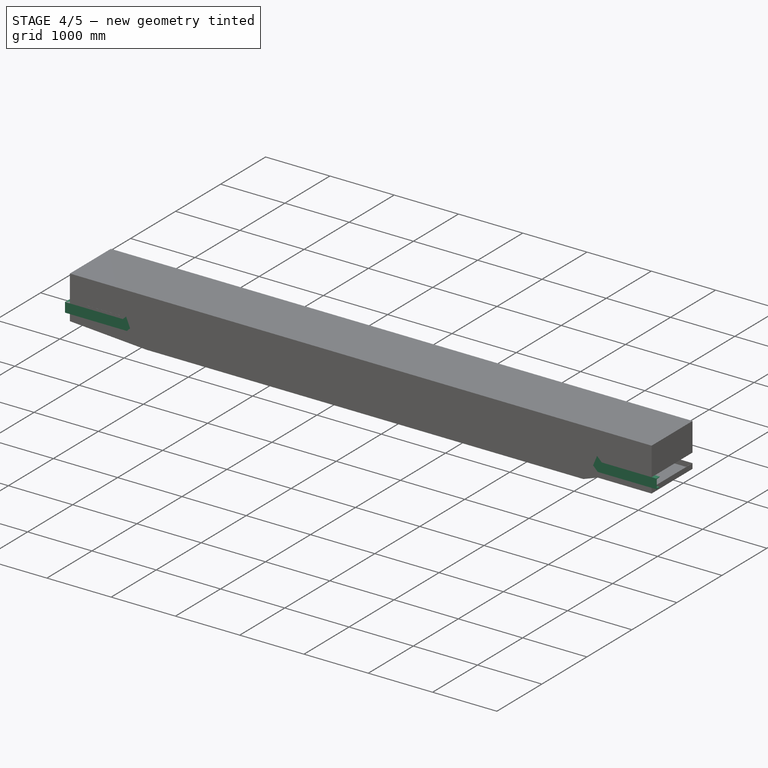
[diagram: stage 4 of 5 — iso view after this stage's code; geometry added in this stage tinted green]
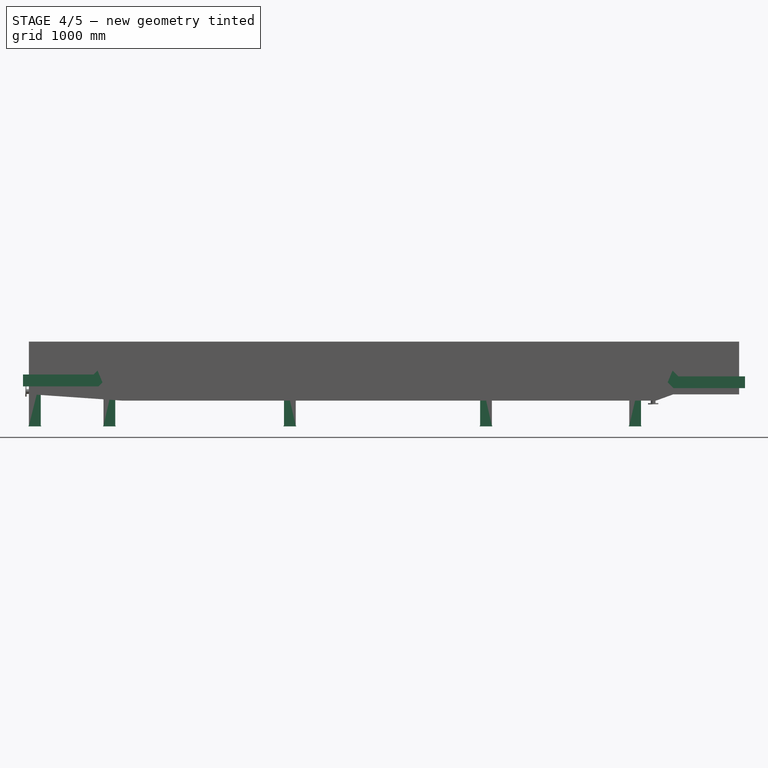
[diagram: stage 4 of 5 — front view after this stage's code; geometry added in this stage tinted green]
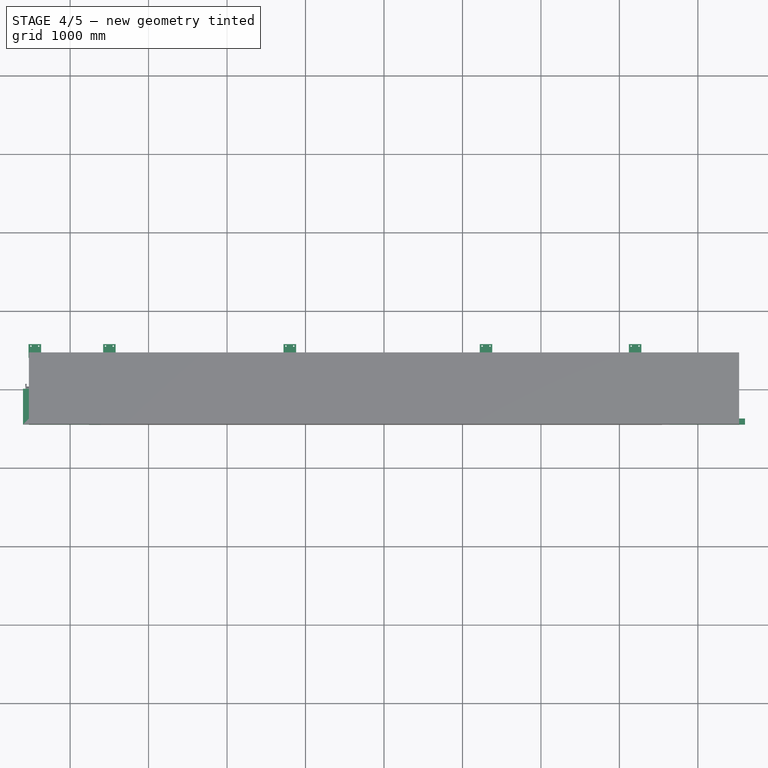
[diagram: stage 4 of 5 — top view after this stage's code; geometry added in this stage tinted green]
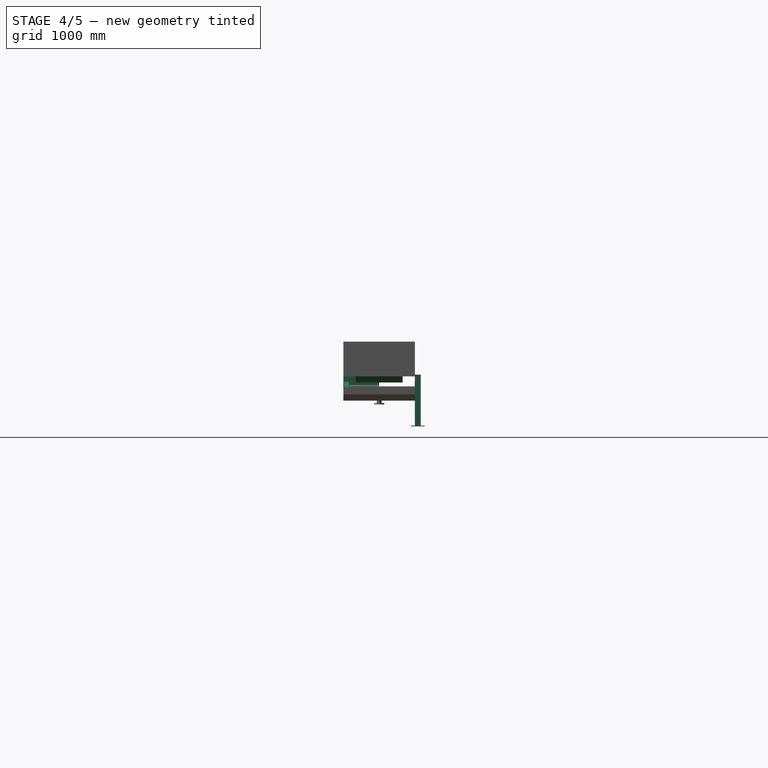
[diagram: stage 4 of 5 — right view after this stage's code; geometry added in this stage tinted green]
FEATURE [Part::Feature] Part__Feature004  label="UCP208FC"
  Placement = pos=(7500,-410,-250.18) rot=(0,0.707107,-0.707107;3.14159rad)
  shape: bbox 184 x 86 x 106.1 mm, 117 faces (baked)
  expr: .Placement.Base.x = Spreadsheet001.C0 - 500
FEATURE [Sketcher::SketchObject] Sketch010
  ArcFitTolerance = 0
  FullyConstrained = true
  MakeInternals = false
  MapMode = 5
  Placement = pos=(-105.6,-410.5,-87) rot=(1,0,0;3.14159rad)
FEATURE [Sketcher::SketchObject] Sketch011
  ArcFitTolerance = 0
  FullyConstrained = true
  MakeInternals = false
  MapMode = 5
  Placement = pos=(0,0,0) rot=(1,0,0;1.5708rad)
  expr: Constraints[14] = Spreadsheet001.C0
  sketch-geometry (6):
    g0: LineSegment StartX=-600 StartY=-89 StartZ=0 EndX=300 EndY=-89 EndZ=0
    g1: LineSegment StartX=300 StartY=-89 StartZ=0 EndX=350 EndY=-39 EndZ=0
    g2: LineSegment StartX=350 StartY=-39 StartZ=0 EndX=7677 EndY=-39 EndZ=0
    g3: LineSegment StartX=7677 StartY=-39 StartZ=0 EndX=7750 EndY=-112 EndZ=0
    g4: LineSegment StartX=7750 StartY=-112 StartZ=0 EndX=8600 EndY=-112 EndZ=0
    g5: LineSegment [constr] StartX=0 StartY=0 StartZ=0 EndX=8000 EndY=0 EndZ=0
  constraints (19):
    c: Horizontal(g0)
    c: Coincident(g0,g1)
    c: Coincident(g1,g2)
    c: Horizontal(g2)
    c: Coincident(g2,g3)
    c: Coincident(g3,g4)
    c: Horizontal(g4)
    c: DistanceX(g0,g-1) = 600
    c: DistanceX(g-1,g0) = 300
    c: Angle(g1,g0) = 2.35619
    c: Angle(g4,g3) = 2.35619
    c: PointOnObject(g5,g-1)
    c: Coincident(g5,g-1)
    c: Distance(g5,g4) = 112
    c: DistanceX(g5,g5) = 8000
    c: DistanceX(g5,g4) = 600
    c: DistanceX(g3,g5) = 250
    c: DistanceY(g0,g1) = 50
    c: DistanceY(g-1,g0) = -89
FEATURE [Part::Sweep] Sweep001
  Frenet = false
  Placement = pos=(0,-455,0) rot=(0,0,1;0rad)
  Sections = -> [ChannelSteel001]
  Solid = true
  Spine = -> Sketch011 [Edge1,Edge2,Edge3,Edge4,Edge5]
  Transition = 1
  expr: .Placement.Base.y = -Spreadsheet001.W0 / 2
FEATURE [Part::FeaturePython] ChannelSteel  # WARN: FeaturePython — macro-defined, semantics opaque (R4)
  B = 75
  H = 150
  L = 1000
  Placement = pos=(-600,0,-239) rot=(0,0,1;0rad)
  Solid = false
  g0 = 7.85
  mass = 0
  size = 3
  standard = SS
  t1 = 6.5
  t2 = 10
FEATURE [Part::Extrusion] Extrude006
  Base = -> ChannelSteel
  Dir = (0,1,0)
  DirMode = 2
  FaceMakerClass = Part::FaceMakerBullseye
  FaceMakerMode = 3
  LengthFwd = 455
  LengthRev = 0
  Reversed = true
  Solid = false
  Symmetric = false
  expr: LengthFwd = Spreadsheet001.B12 / 2
FEATURE [Part::MultiFuse] Fusion
  Refine = true
  Shapes = -> [Sweep001,Extrude006]
FEATURE [Part::Extrusion] Extrude003
  Base = -> Sketch012
  Dir = (0,0,1)
  DirMode = 2
  FaceMakerClass = Part::FaceMakerBullseye
  FaceMakerMode = 3
  LengthFwd = 12
  LengthRev = 0
  Solid = true
  Symmetric = false
FEATURE [Part::MultiFuse] Fusion001
  Shapes = -> [Fusion,Extrude003]
FEATURE [App::Part] Part011  label="Skirt"
  Group = -> [Part008,Mirror003]
  Origin = -> Origin016
  Placement = pos=(0,0,-13) rot=(0,0,1;0rad)
  mass = 58.03
FEATURE [App::Part] Part012  label="Frame"
  Group = -> [Part002,Mirror001,Sketch007,Sketch010]
  Origin = -> Origin017
  mass = 180.08
FEATURE [Sketcher::SketchObject] Sketch025
  ArcFitTolerance = 0
  FullyConstrained = true
  MakeInternals = false
  Placement = pos=(0,0,0) rot=(0.57735,0.57735,0.57735;2.0944rad)
  expr: Constraints[1] = Spreadsheet001.B0
  expr: Constraints[2] = Spreadsheet001.D0 / 2
  sketch-geometry (1):
    g0: LineSegment StartX=-300 StartY=180 StartZ=0 EndX=300 EndY=180 EndZ=0
  constraints (3):
    c: Symmetric(g0,g0,g-2)
    c: DistanceX(g0,g0) = 600
    c: Distance(g-1,g0) = 180
FEATURE [Sketcher::SketchObject] Sketch001
  ArcFitTolerance = 0
  FullyConstrained = true
  MakeInternals = false
  Placement = pos=(8000,0,0) rot=(0.57735,0.57735,0.57735;2.0944rad)
  expr: .Placement.Base.x = Spreadsheet001.C0
  expr: Constraints[1] = Spreadsheet001.B0
  expr: Constraints[2] = Spreadsheet001.D0 / 2
  sketch-geometry (1):
    g0: LineSegment StartX=-300 StartY=180 StartZ=0 EndX=300 EndY=180 EndZ=0
  constraints (3):
    c: Symmetric(g0,g0,g-2)
    c: DistanceX(g0,g0) = 600
    c: Distance(g-1,g0) = 180
FEATURE [Sketcher::SketchObject] Sketch002
  ArcFitTolerance = 0
  FullyConstrained = true
  MakeInternals = false
  Placement = pos=(500,0,0) rot=(0.57735,0.57735,0.57735;2.0944rad)
  expr: Constraints[5] = Spreadsheet001.b2
  expr: Constraints[6] = Spreadsheet001.b2
  expr: Constraints[7] = Spreadsheet001.D0 / 2
  expr: Constraints[8] = Spreadsheet001.b1
  sketch-geometry (3):
    g0: LineSegment StartX=-288.24 StartY=246.694 StartZ=0 EndX=-105 EndY=180 EndZ=0
    g1: LineSegment StartX=-105 StartY=180 StartZ=0 EndX=105 EndY=180 EndZ=0
    g2: LineSegment StartX=105 StartY=180 StartZ=0 EndX=288.24 EndY=246.694 EndZ=0
  constraints (9):
    c: Coincident(g0,g1)
    c: Coincident(g1,g2)
    c: Angle(g2,g1) = 2.79253
    c: Angle(g1,g0) = 2.79253
    c: Symmetric(g1,g0,g-2)
    c: Distance(g2) = 195
    c: Distance(g0) = 195
    c: DistanceY(g-1,g1) = 180
    c: DistanceX(g1,g1) = 210
FEATURE [Sketcher::SketchObject] Sketch003
  ArcFitTolerance = 0
  FullyConstrained = true
  MakeInternals = false
  Placement = pos=(7500,0,0) rot=(0.57735,0.57735,0.57735;2.0944rad)
  expr: .Placement.Base.x = Spreadsheet001.C0 - 500
  expr: Constraints[5] = Spreadsheet001.b2
  expr: Constraints[6] = Spreadsheet001.b2
  expr: Constraints[7] = Spreadsheet001.D0 / 2
  expr: Constraints[8] = Spreadsheet001.b1
  sketch-geometry (3):
    g0: LineSegment StartX=-288.24 StartY=246.694 StartZ=0 EndX=-105 EndY=180 EndZ=0
    g1: LineSegment StartX=-105 StartY=180 StartZ=0 EndX=105 EndY=180 EndZ=0
    g2: LineSegment StartX=105 StartY=180 StartZ=0 EndX=288.24 EndY=246.694 EndZ=0
  constraints (9):
    c: Coincident(g0,g1)
    c: Coincident(g1,g2)
    c: Angle(g2,g1) = 2.79253
    c: Angle(g1,g0) = 2.79253
    c: Symmetric(g1,g0,g-2)
    c: Distance(g2) = 195
    c: Distance(g0) = 195
    c: DistanceY(g-1,g1) = 180
    c: DistanceX(g1,g1) = 210
FEATURE [Sketcher::SketchObject] Sketch005
  ArcFitTolerance = 0
  FullyConstrained = true
  MakeInternals = false
  Placement = pos=(8000,0,0) rot=(1,0,0;1.5708rad)
  expr: .Placement.Base.x = Spreadsheet001.C0
  expr: Constraints[0] = Spreadsheet001.D0
  expr: Constraints[10] = Spreadsheet001.Ls
  expr: Constraints[20] = Spreadsheet001.t0
  expr: Constraints[22] = Spreadsheet001.t0
  expr: Constraints[29] = (Spreadsheet001.D0 - Spreadsheet001.d1) / 2
  expr: Constraints[2] = Spreadsheet001.d1
  expr: Constraints[6] = Spreadsheet001.d2 / 2
  expr: Constraints[8] = Spreadsheet001.C0
  sketch-geometry (12):
    g0: ArcOfCircle CenterX=0 CenterY=0 CenterZ=0 NormalX=0 NormalY=0 NormalZ=1 AngleXU=0 Radius=180 StartAngle=4.58871 EndAngle=7.85398
    g1: ArcOfCircle CenterX=-8000 CenterY=30 CenterZ=0 NormalX=0 NormalY=0 NormalZ=1 AngleXU=0 Radius=150 StartAngle=1.5708 EndAngle=4.71239
    g2: LineSegment StartX=-22.2048 StartY=-178.625 StartZ=0 EndX=-487.664 EndY=-120.764 EndZ=0
    g3: LineSegment StartX=-500 StartY=-120 StartZ=0 EndX=-8000 EndY=-120 EndZ=0
    g4: ArcOfCircle CenterX=-500 CenterY=-220 CenterZ=0 NormalX=0 NormalY=0 NormalZ=1 AngleXU=0 Radius=100 StartAngle=1.44712 EndAngle=1.5708
    g5: ArcOfCircle CenterX=-8000 CenterY=30 CenterZ=0 NormalX=0 NormalY=0 NormalZ=1 AngleXU=0 Radius=160 StartAngle=1.5708 EndAngle=4.71239
    g6: LineSegment StartX=-8000 StartY=-130 StartZ=0 EndX=-500 EndY=-130 EndZ=0
    g7: ArcOfCircle CenterX=-500 CenterY=-220 CenterZ=0 NormalX=0 NormalY=0 NormalZ=1 AngleXU=0 Radius=90 StartAngle=1.44712 EndAngle=1.5708
    g8: LineSegment StartX=-488.898 StartY=-130.687 StartZ=0 EndX=-23.4385 EndY=-188.549 EndZ=0
    g9: ArcOfCircle CenterX=0 CenterY=0 CenterZ=0 NormalX=0 NormalY=0 NormalZ=1 AngleXU=0 Radius=190 StartAngle=4.58871 EndAngle=7.85398
    g10: LineSegment StartX=0 StartY=180 StartZ=0 EndX=5.82e-14 EndY=190 EndZ=0
    g11: LineSegment StartX=-8000 StartY=180 StartZ=0 EndX=-8000 EndY=190 EndZ=0
  constraints (32):
    c: Diameter(g0) = 360
    c: Coincident(g-1,g0)
    c: Diameter(g1) = 300
    c: Horizontal(g3)
    c: Tangent(g2,g4) = -1.5708
    c: Tangent(g3,g4) = -1.5708
    c: Radius(g4) = 100
    c: Coincident(g1,g3)
    c: DistanceX(g1,g0) = 8000
    c: Vertical(g0,g0)
    c: DistanceX(g4,g0) = 500
    c: Vertical(g1,g1)
    c: Coincident(g5,g1)
    c: Tangent(g5,g6) = -1.5708
    c: Tangent(g6,g7) = 1.5708
    c: Tangent(g8,g9) = -1.5708
    c: PointOnObject(g9,g-2)
    c: Coincident(g10,g0)
    c: Coincident(g10,g9)
    c: Coincident(g9,g0)
    c: DistanceY(g10,g10) = 10
    c: Coincident(g4,g7)
    c: DistanceY(g5,g1) = 10
    c: Vertical(g1,g5)
    c: Coincident(g11,g1)
    c: Coincident(g11,g5)
    c: Tangent(g7,g8) = 1.5708
    c: Vertical(g1,g1)
    c: Parallel(g8,g2)
    c: DistanceY(g-1,g1) = 30
    c: Parallel(g6,g3)
    c: Coincident(g2,g0)
FEATURE [Part::Extrusion] Extrude
  Base = -> Sketch005
  Dir = (0,-1,2e-16)
  DirMode = 2
  FaceMakerClass = Part::FaceMakerBullseye
  FaceMakerMode = 3
  LengthFwd = 600
  LengthRev = 0
  Solid = true
  Symmetric = true
  expr: LengthFwd = Spreadsheet001.B0
FEATURE [Sketcher::SketchObject] Sketch026
  ArcFitTolerance = 0
  FullyConstrained = true
  MakeInternals = false
  Placement = pos=(0,0,0) rot=(1,0,0;1.5708rad)
  sketch-geometry (1):
    g0: LineSegment StartX=0 StartY=180 StartZ=0 EndX=500 EndY=180 EndZ=0
  constraints (4):
    c: Horizontal(g0)
    c: Vertical(g0,g-1)
    c: DistanceY(g-1,g0) = 180
    c: DistanceX(g0,g0) = 500
FEATURE [Sketcher::SketchObject] Sketch008
  ArcFitTolerance = 0
  FullyConstrained = true
  MakeInternals = false
  Placement = pos=(0,0,0) rot=(1,0,0;1.5708rad)
  expr: Constraints[2] = Spreadsheet001.C0
  sketch-geometry (1):
    g0: LineSegment StartX=7500 StartY=180 StartZ=0 EndX=8000 EndY=180 EndZ=0
  constraints (4):
    c: Horizontal(g0)
    c: DistanceY(g-1,g0) = 180
    c: DistanceX(g-1,g0) = 8000
    c: DistanceX(g0,g0) = 500
FEATURE [Sketcher::SketchObject] Sketch009
  ArcFitTolerance = 0
  FullyConstrained = true
  MakeInternals = false
  Placement = pos=(0,0,0) rot=(1,0,0;1.5708rad)
  sketch-geometry (1):
    g0: LineSegment StartX=500 StartY=180 StartZ=0 EndX=4500 EndY=180 EndZ=0
  constraints (4):
    c: Horizontal(g0)
    c: DistanceX(g-1,g0) = 500
    c: DistanceY(g-1,g0) = 180
    c: DistanceX(g0,g0) = 4000
FEATURE [Part::Sweep] Sweep003
  Frenet = false
  Sections = -> [Sketch002,Sketch003]
  Solid = false
  Spine = -> Sketch009 [Edge1]
  Transition = 1
FEATURE [Part::Extrusion] Extrude017
  Base = -> Sweep003
  Dir = (0,0,1)
  DirMode = 0
  FaceMakerClass = Part::FaceMakerBullseye
  FaceMakerMode = 3
  LengthFwd = 10
  LengthRev = 0
  Solid = false
  Symmetric = false
FEATURE [Part::Sweep] Sweep
  Frenet = false
  Sections = -> [Sketch025,Sketch002]
  Solid = false
  Spine = -> Sketch026 [Edge1]
  Transition = 1
FEATURE [Part::Extrusion] Extrude018
  Base = -> Sweep
  Dir = (0,0,1)
  DirMode = 0
  FaceMakerClass = Part::FaceMakerBullseye
  FaceMakerMode = 3
  LengthFwd = 10
  LengthRev = 0
  Solid = false
  Symmetric = false
FEATURE [Part::Sweep] Sweep004
  Frenet = false
  Sections = -> [Sketch001,Sketch003]
  Solid = false
  Spine = -> Sketch008 [Edge1]
  Transition = 1
FEATURE [Part::Extrusion] Extrude019
  Base = -> Sweep004
  Dir = (0,0,1)
  DirMode = 0
  FaceMakerClass = Part::FaceMakerBullseye
  FaceMakerMode = 3
  LengthFwd = 10
  LengthRev = 0
  Solid = false
  Symmetric = false
FEATURE [App::Part] Part015  label="Belt"
  Group = -> [Sketch005,Extrude,Sketch001,Sketch025,Sketch002,Sketch003,Sketch026,Sketch008,Sketch009,Sweep003,Extrude017,Sweep,Extrude018,Sweep004,Extrude019]
  Origin = -> Origin020
  Placement = pos=(0,0,-38) rot=(0,0,1;0rad)
  mass = 100.67
FEATURE [Part::FeaturePython] BasePlate  # WARN: FeaturePython — macro-defined, semantics opaque (R4)
  B = 175
  D = 19
  H = 160
  b1 = 25
  h1 = 30
  sface = 0
FEATURE [Part::Extrusion] Extrude020
  Base = -> BasePlate
  Dir = (0,0,1)
  DirMode = 2
  FaceMakerClass = Part::FaceMakerBullseye
  FaceMakerMode = 3
  LengthFwd = 10
  LengthRev = 0
  Solid = true
  Symmetric = false
FEATURE [Part::FeaturePython] Channel  # WARN: FeaturePython — macro-defined, semantics opaque (R4)
  B = 75
  H = 150
  L = 610
  Solid = true
  g0 = 7.85
  mass = 10.312
  size = 3
  standard = SS
  expr: L = str(Spreadsheet001.Ht - 140 - 450 * tan(Spreadsheet001.k))
FEATURE [Part::MultiFuse] Fusion010  label="PostC"
  Placement = pos=(-450,-492.5,-750) rot=(0,0,-1;1.5708rad)
  Shapes = -> [Extrude020,Channel]
  expr: .Placement.Base.z = -Spreadsheet001.Ht
FEATURE [Part::FeaturePython] BasePlate001  # WARN: FeaturePython — macro-defined, semantics opaque (R4)
  B = 175
  D = 19
  H = 160
  b1 = 25
  h1 = 30
  sface = 0
FEATURE [Part::FeaturePython] Channel001  # WARN: FeaturePython — macro-defined, semantics opaque (R4)
  B = 75
  H = 150
  L = 660
  Solid = true
  g0 = 7.85
  mass = 11.1572
  size = 3
  standard = SS
  expr: L = str(Spreadsheet001.Ht - 90 + 500 * tan(Spreadsheet001.k))
FEATURE [Part::Extrusion] Extrude021
  Base = -> BasePlate001
  Dir = (0,0,1)
  DirMode = 2
  FaceMakerClass = Part::FaceMakerBullseye
  FaceMakerMode = 3
  LengthFwd = 10
  LengthRev = 0
  Solid = true
  Symmetric = false
FEATURE [Part::MultiFuse] Fusion011  label="PostC001"
  Placement = pos=(500,-492.5,-750) rot=(0,0,-1;1.5708rad)
  Shapes = -> [Extrude021,Channel001]
  expr: .Placement.Base.z = -Spreadsheet001.Ht
FEATURE [Part::MultiFuse] Fusion012  label="ヘッド部"
  Placement = pos=(7200,-492.5,-750) rot=(0,0,-1;1.5708rad)
  Shapes = -> [Extrude022,Channel002]
  expr: .Placement.Base.x = Spreadsheet001.C0 - 800
  expr: .Placement.Base.z = -Spreadsheet001.Ht
FEATURE [App::Part] Part018  label="post"
  Group = -> [BasePlate,Channel,Extrude020,Fusion010,BasePlate001,Channel001,Extrude021,Fusion011,BasePlate002,Channel002,Extrude022,Fusion012,Fusion013,BasePlate003,Channel003,Sketch027,Extrude023,Extrude024,Array004,Cut002]
  Origin = -> Origin022
FEATURE [Part::Mirroring] Mirror004  label="post (mirrored)"
  Base = (-3000,0,0)
  Normal = (0,-1,0)
  Source = -> Part018
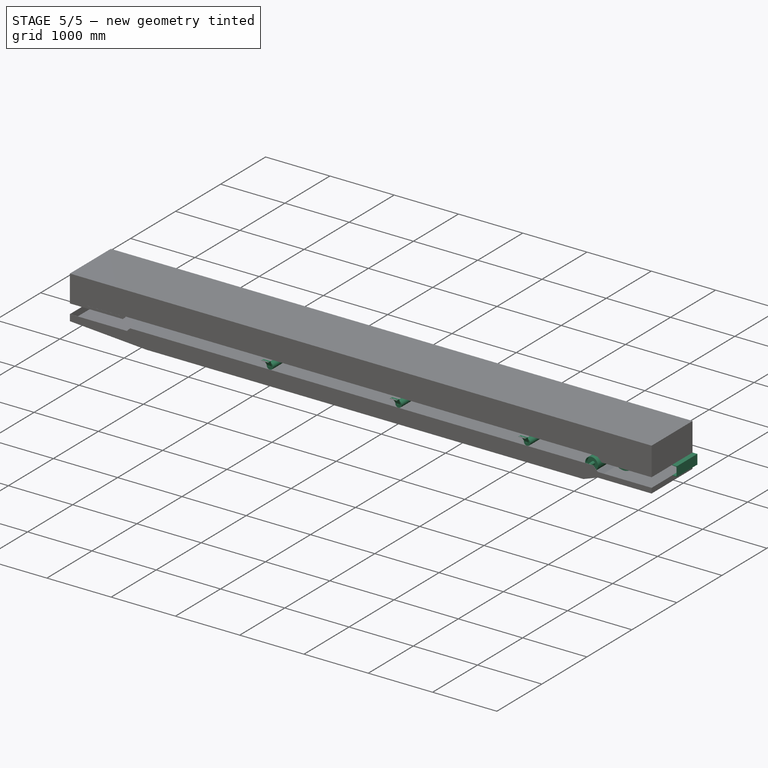
[diagram: stage 5 of 5 — iso view after this stage's code; geometry added in this stage tinted green]
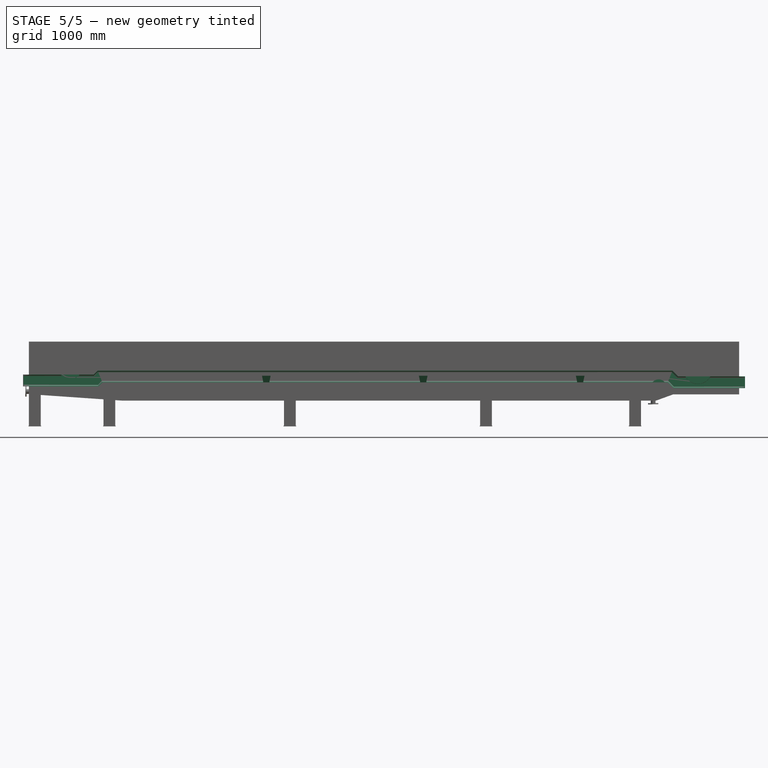
[diagram: stage 5 of 5 — front view after this stage's code; geometry added in this stage tinted green]
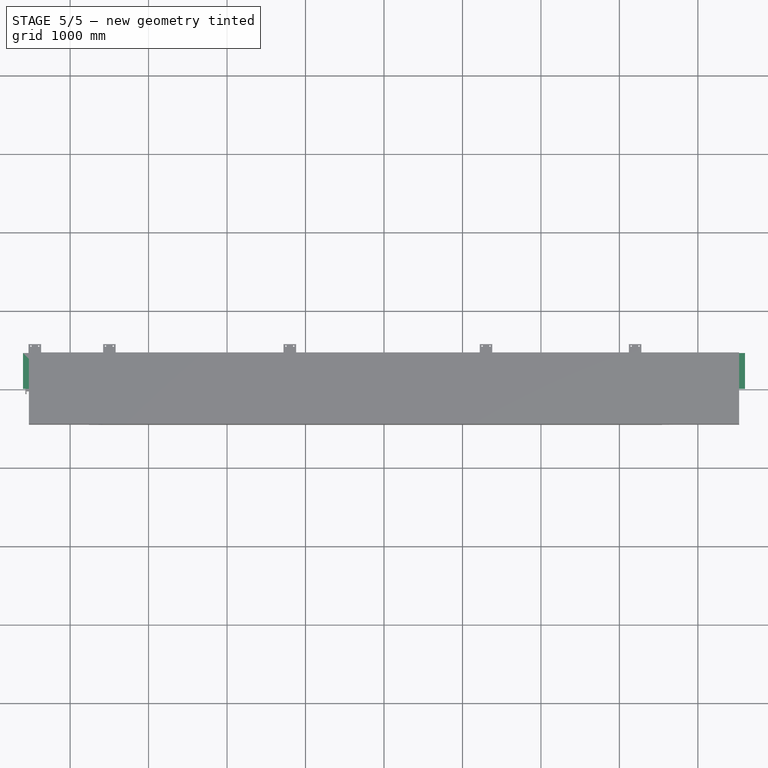
[diagram: stage 5 of 5 — top view after this stage's code; geometry added in this stage tinted green]
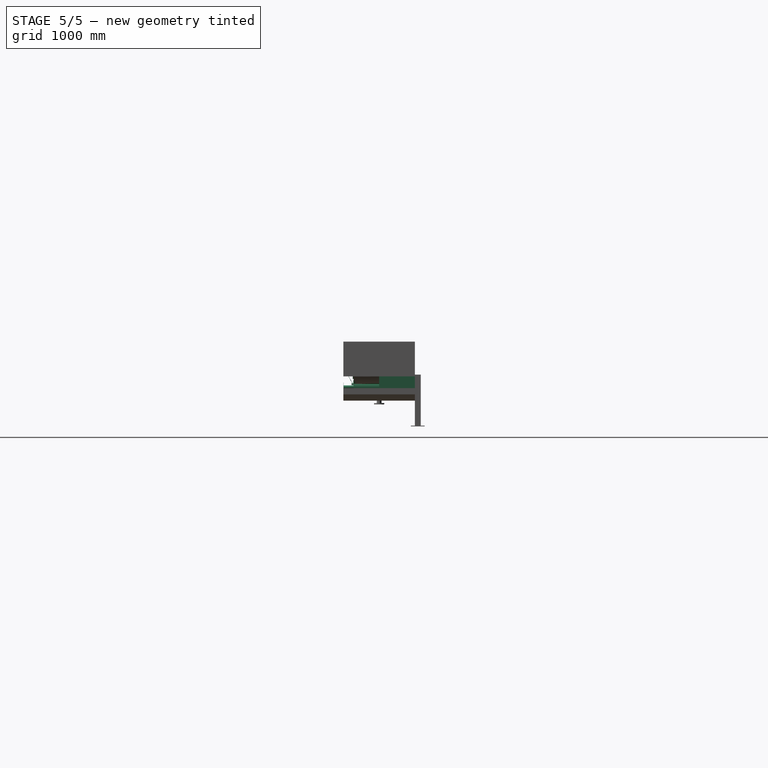
[diagram: stage 5 of 5 — right view after this stage's code; geometry added in this stage tinted green]
FEATURE [Spreadsheet::Sheet] Spreadsheet001  label="shtBeltCvAssy"
  cells = C1='tailPulleyHIght Ht; D1='Inclination k(degree); E1='Array_n; F1='BeltWidth B0; G1='h1; H1='h2; I1='post_x; J1='pst_c; A2='CenterDistance C0; B2(C0)=8000; C2(Ht)=750; D2(k)=0; E2(n0)==C0 / 2500; F2=600; G2(h1)=50; H2(h2)=73; I2(post_x)=2233.33; J2(post_c)=2; A3='BeltWidth B0; B3(B0)=600; C3=400; D3=450; E3=500; F3=600; G3=700; H3=750; I3=800; J3=900; K3=1000; A4='Belt b1; B4(b1)=210; C4=145; D4=165; E4=180; F4=210; G4=250; H4=265; I4=280; J4=315; K4=345; A5='Belt b2; B5(b2)=195; C5==(C3 - C4) / 2; D5==(D3 - D4) / 2; E5==(E3 - E4) / 2; F5==(F3 - F4) / 2; G5==(G3 - G4) / 2; H5==(H3 - H4) / 2; I5==(I3 - I4) / 2; J5==(J3 - J4) / 2; K5==(K3 - K4) / 2; A6='BeltThickness t0; B6(t0)=10; C6=10; D6=10; E6=10; F6=10; G6=10; H6=10; I6=10; J6=10; K6=10; A7='HeadPullyDia D0; B7(D0)=360; C7=300; D7=300; E7=360; F7=360; G7=360; H7=460; I7=460; J7=520; K7=520; A8='TailPullyDia d1; B8(d1)=300; C8=260; D8=260; E8=300; F8=300; G8=300; H8=390; I8=390; J8=440; K8=440; A9='SnapPullyDia d2; B9(d2)=200; C9=200; D9=200; E9=200; F9=200; G9=200; H9=200; I9=200; J9=200; K9=200; A10='SnapPully Ls; B10(Ls)=500; C10=400; D10=400; E10=400; F10=500; G10=500; H10=500; I10=500; J10=500; K10=500; A11='SnapPully h0; B11(h0)=180; C11=180; D11=180; E11=160; F11=180; G11=180; H11=180; I11=180; J11=180; K11=180; A12='hontaihaba W; B12(W0)=910; C12=710; D12=760; E12=810; F12=910; G12=910; H12=910; I12=910; J12=910; K12=910; A13='hontai _h; B13=103.5; C13=103.5; D13=103.5; E13=103.5; F13=103.5; G13=103.5; H13=103.5; I13=103.5; J13=103.5; K13=103.5; A14='hontai_z; B14=16; C14=16; D14=16; E14=16; F14=16; G14=16; H14=16; I14=16; J14=16; K14=16; A15='takeup_x; B15=-403.47; C15=-403.47; D15=-403.47; E15=-403.47; F15=-403.47; G15=-403.47; H15=-403.47; I15=-403.47; J15=-403.47; K15=-403.47; A16='takeup_y; B16=-410; C16=-362.8; D16=-362.8; E16=-362.8; F16=-410; G16=-410; H16=-410; I16=-410; J16=-410; K16=-410; A17='takeup_z; B17=-57; C17=-87; D17=-87; E17=-87; F17=-57; G17=-57; H17=-57; I17=-57; J17=-57; K17=-57; A18='carrierPitch  cp; B18=1000; A19='returnPitch rp; B19=1500; A20='outletL; B20(outletL)=50; A21='outletK; B21(outletK)=0; A22='insertX; B22(insertX)=300; A23='insertK; B23(insertK)=0
FEATURE [Part::FeaturePython] CPM2_4145  # WARN: FeaturePython — macro-defined, semantics opaque (R4)
  A = 650
  B1 = 500
  B2 = 600
  C = 70
  D = 360
  D1 = 356
  D2 = 228
  D3 = 278
  E = 170
  F = 0
  G1 = 30
  G2 = 30
  H = 33
  L = 863
  M = 210
  N1 = 60
  N2 = 60
  P = 75
  Placement = pos=(8000,0,-30) rot=(0,0,1;1.5708rad)
  R = 20
  a = 11
  b = 11
  d = 18
  key = 5
  mass = 545.64
  expr: .Placement.Base.x = Spreadsheet001.C0
FEATURE [Sketcher::SketchObject] Sketch007
  ArcFitTolerance = 0
  FullyConstrained = true
  MakeInternals = false
  MapMode = 5
  Placement = pos=(0,0,14) rot=(1,0,0;1.5708rad)
  expr: Constraints[11] = Spreadsheet001.C0 + 1000
  sketch-geometry (5):
    g0: LineSegment StartX=-600 StartY=-99 StartZ=0 EndX=250 EndY=-99 EndZ=0
    g1: LineSegment StartX=250 StartY=-99 StartZ=0 EndX=309 EndY=-40 EndZ=0
    g2: LineSegment StartX=309 StartY=-40 StartZ=0 EndX=7728 EndY=-40 EndZ=0
    g3: LineSegment StartX=7728 StartY=-40 StartZ=0 EndX=7800 EndY=-112 EndZ=0
    g4: LineSegment StartX=7800 StartY=-112 StartZ=0 EndX=9000 EndY=-112 EndZ=0
  constraints (16):
    c: Horizontal(g0)
    c: Coincident(g0,g1)
    c: Coincident(g1,g2)
    c: Horizontal(g2)
    c: Coincident(g2,g3)
    c: Coincident(g3,g4)
    c: Horizontal(g4)
    c: DistanceX(g0,g-1) = 600
    c: Angle(g1,g0) = 2.35619
    c: DistanceX(g-1,g0) = 250
    c: Angle(g4,g3) = 2.35619
    c: DistanceX(g-1,g4) = 9000
    c: DistanceX(g4,g4) = 1200
    c: DistanceY(g0,g-1) = 99
    c: DistanceY(g0,g1) = 59
    c: DistanceY(g-1,g3) = -112
FEATURE [Part::Feature] ChannelSteel001
  Placement = pos=(-600,-2.2e-14,-239) rot=(0,0,1;0rad)
  shape: bbox 2e-07 x 75 x 150 mm, 0 faces, 0 solids (baked)
FEATURE [Part::FeaturePython] BendPulley  label="body001"  # WARN: FeaturePython — macro-defined, semantics opaque (R4)
  A = 50
  B = 103.5
  C = 700
  D = 200
  E = 0
  L = 650
  Placement = pos=(7500,1.79e-13,-250.18) rot=(0,0,-1;1.5708rad)
  d1 = 50
  d2 = 45
  d3 = 0
  t1 = 9
  t2 = 9
  t3 = 8
  t4 = 8
  expr: .Placement.Base.x = Spreadsheet001.C0 - 500
FEATURE [Sketcher::SketchObject] Sketch012
  ArcFitTolerance = 0
  AttachmentSupport = -> [Sweep001]
  FullyConstrained = true
  MakeInternals = false
  MapMode = 5
  Placement = pos=(0,-455,-89) rot=(0,0,1;0rad)
  sketch-geometry (4):
    g0: LineSegment StartX=-480 StartY=8 StartZ=0 EndX=185 EndY=8 EndZ=0
    g1: LineSegment StartX=185 StartY=8 StartZ=0 EndX=185 EndY=83 EndZ=0
    g2: LineSegment StartX=185 StartY=83 StartZ=0 EndX=-480 EndY=83 EndZ=0
    g3: LineSegment StartX=-480 StartY=83 StartZ=0 EndX=-480 EndY=8 EndZ=0
  constraints (12):
    c: Coincident(g0,g1)
    c: Coincident(g1,g2)
    c: Coincident(g2,g3)
    c: Coincident(g3,g0)
    c: Horizontal(g0)
    c: Horizontal(g2)
    c: Vertical(g1)
    c: Vertical(g3)
    c: DistanceY(g1,g1) = 75
    c: DistanceY(g-1,g0) = 8
    c: DistanceX(g-1,g0) = 185
    c: DistanceX(g0,g0) = 665
FEATURE [Sketcher::SketchObject] Sketch013
  ArcFitTolerance = 0
  AttachmentSupport = -> [Sweep001]
  FullyConstrained = false
  MakeInternals = false
  MapMode = 5
  Placement = pos=(0,-455,-112) rot=(0,0,1;0rad)
  expr: Constraints[9] = Spreadsheet001.C0
  sketch-geometry (5):
    g0: LineSegment StartX=7885 StartY=16.2326 StartZ=0 EndX=8115 EndY=16.2326 EndZ=0
    g1: LineSegment StartX=8115 StartY=16.2326 StartZ=0 EndX=8115 EndY=96.2326 EndZ=0
    g2: LineSegment StartX=8115 StartY=96.2326 StartZ=0 EndX=7885 EndY=96.2326 EndZ=0
    g3: LineSegment StartX=7885 StartY=96.2326 StartZ=0 EndX=7885 EndY=16.2326 EndZ=0
    g4: LineSegment [constr] StartX=8000 StartY=284.577 StartZ=0 EndX=8000 EndY=-153.677 EndZ=0
  constraints (13):
    c: Coincident(g0,g1)
    c: Coincident(g1,g2)
    c: Coincident(g2,g3)
    c: Coincident(g3,g0)
    c: Horizontal(g0)
    c: Horizontal(g2)
    c: Vertical(g1)
    c: Vertical(g3)
    c: Vertical(g4)
    c: DistanceX(g-2,g4) = 8000
    c: DistanceY(g1,g1) = 80
    c: DistanceX(g0,g0) = 230
    c: DistanceX(g4,g0) = 115
FEATURE [Part::Extrusion] Extrude004
  Base = -> Sketch013
  Dir = (0,0,1)
  DirMode = 2
  FaceMakerClass = Part::FaceMakerBullseye
  FaceMakerMode = 3
  LengthFwd = 12
  LengthRev = 0
  Solid = true
  Symmetric = false
FEATURE [Sketcher::SketchObject] Sketch014
  ArcFitTolerance = 0
  AttachmentSupport = -> [Sweep001]
  FullyConstrained = false
  MakeInternals = false
  MapMode = 5
  Placement = pos=(0,-455,-189) rot=(1,0,0;3.14159rad)
  expr: Constraints[13] = Spreadsheet001.C0 - 500
  sketch-geometry (5):
    g0: LineSegment StartX=7400 StartY=-9 StartZ=0 EndX=7600 EndY=-9 EndZ=0
    g1: LineSegment StartX=7600 StartY=-9 StartZ=0 EndX=7600 EndY=-79 EndZ=0
    g2: LineSegment StartX=7600 StartY=-79 StartZ=0 EndX=7400 EndY=-79 EndZ=0
    g3: LineSegment StartX=7400 StartY=-79 StartZ=0 EndX=7400 EndY=-9 EndZ=0
    g4: LineSegment [constr] StartX=7500 StartY=33.7597 StartZ=0 EndX=7500 EndY=-194.785 EndZ=0
  constraints (14):
    c: Coincident(g0,g1)
    c: Coincident(g1,g2)
    c: Coincident(g2,g3)
    c: Coincident(g3,g0)
    c: Horizontal(g0)
    c: Horizontal(g2)
    c: Vertical(g1)
    c: Vertical(g3)
    c: Vertical(g4)
    c: DistanceX(g0,g0) = 200
    c: DistanceY(g3,g3) = 70
    c: DistanceX(g4,g0) = 100
    c: DistanceY(g-1,g0) = -9
    c: DistanceX(g-1,g4) = 7500
FEATURE [Part::Extrusion] Extrude005
  Base = -> Sketch014
  Dir = (0,0,-1)
  DirMode = 2
  FaceMakerClass = Part::FaceMakerBullseye
  FaceMakerMode = 3
  LengthFwd = 30
  LengthRev = 0
  Solid = true
  Symmetric = false
FEATURE [Part::FeaturePython] ChannelSteel002  # WARN: FeaturePython — macro-defined, semantics opaque (R4)
  B = 75
  H = 150
  L = 1000
  Placement = pos=(8600,0,-112) rot=(0,1,0;3.14159rad)
  Solid = false
  g0 = 7.85
  mass = 0
  size = 3
  standard = SS
  t1 = 6.5
  t2 = 10
  expr: .Placement.Base.x = Spreadsheet001.C0 + 600
FEATURE [Part::Extrusion] Extrude007
  Base = -> ChannelSteel002
  Dir = (0,1,0)
  DirMode = 2
  FaceMakerClass = Part::FaceMakerBullseye
  FaceMakerMode = 3
  LengthFwd = 455
  LengthRev = 0
  Reversed = true
  Solid = false
  Symmetric = false
  expr: LengthFwd = Spreadsheet001.W0 / 2
FEATURE [Part::Mirroring] Part__Mirroring001  label="UCP208FC (Mirror #3)"
  Base = (0,0,0)
  Normal = (0,1,0)
  Source = -> Part__Feature004
FEATURE [Part::MultiFuse] Fusion002
  Refine = true
  Shapes = -> [Fusion001,Extrude007]
FEATURE [Part::MultiFuse] Fusion003
  Shapes = -> [Fusion002,Extrude004]
FEATURE [Part::MultiFuse] Fusion004
  Refine = true
  Shapes = -> [Fusion003,Extrude005]
FEATURE [App::Part] Part002  label="本体"
  Group = -> [Fusion,ChannelSteel002,ChannelSteel,ChannelSteel001,Sweep001,Sketch011,Sketch012,Extrude005,Extrude006,Extrude003,Extrude007,Extrude004,Sketch013,Sketch014,Fusion002,Fusion003,Fusion001,Fusion004]
  Origin = -> Origin006
FEATURE [Part::Mirroring] Mirror001  label="本体 (mirrored)"
  Base = (-1000,0,0)
  Normal = (0,-1,0)
  Source = -> Part002
FEATURE [Part::Feature] Part__Feature005  label="UCT204-Nipple001"
  Placement = pos=(402.082,85.3824,0) rot=(0.519988,-0.677661,0.519988;1.95044rad)
  shape: bbox 18.99 x 12.27 x 15.73 mm, 44 faces (baked)
FEATURE [Part::Feature] Part__Feature006  label="UCT204-Housing003"
  Placement = pos=(435,77,0) rot=(0,0,1;0rad)
  shape: bbox 145.2 x 120 x 60 mm, 83 faces (baked)
FEATURE [Part::Feature] Part__Feature007  label="UCTL204-300-Frame001"
  Placement = pos=(285,77,0) rot=(0,0,1;0rad)
  shape: bbox 630 x 146 x 56.5 mm, 312 faces (baked)
FEATURE [App::Part] UCTL204J_300_001  label="UCTL204J-300-001"
  Group = -> [Part__Feature005,Part__Feature006,Part__Feature007]
  Origin = -> Origin008
FEATURE [App::Part] _______________________________20_v002  label="テークアップユニット_20 v002"
  Group = -> [UCTL204J_300_001]
  Origin = -> Origin009
  Placement = pos=(-435,-410,-77) rot=(1,0,0;1.5708rad)
FEATURE [Part::FeaturePython] Take_upPulley001  # WARN: FeaturePython — macro-defined, semantics opaque (R4)
  A = 50
  B = 50
  C = 768
  D = 300
  E = 0
  L = 650
  Placement = pos=(0,0,0) rot=(0,0,-1;1.5708rad)
  d1 = 30
  d2 = 20
  d3 = 0
  t1 = 9
  t2 = 9
  t3 = 8
  t4 = 8
FEATURE [Sketcher::SketchObject] Sketch015
  ArcFitTolerance = 0
  FullyConstrained = true
  MakeInternals = false
  sketch-geometry (10):
    g0: LineSegment StartX=-600 StartY=-625 StartZ=0 EndX=-600 EndY=625 EndZ=0
    g1: LineSegment StartX=-600 StartY=625 StartZ=0 EndX=600 EndY=625 EndZ=0
    g2: LineSegment StartX=600 StartY=625 StartZ=0 EndX=600 EndY=-625 EndZ=0
    g3: LineSegment StartX=600 StartY=-625 StartZ=0 EndX=-600 EndY=-625 EndZ=0
    g4: GeomPoint [constr] X=0 Y=0 Z=0
    g5: LineSegment StartX=-525 StartY=-550 StartZ=0 EndX=-525 EndY=550 EndZ=0
    g6: LineSegment StartX=-525 StartY=550 StartZ=0 EndX=525 EndY=550 EndZ=0
    g7: LineSegment StartX=525 StartY=550 StartZ=0 EndX=525 EndY=-550 EndZ=0
    g8: LineSegment StartX=525 StartY=-550 StartZ=0 EndX=-525 EndY=-550 EndZ=0
    g9: GeomPoint [constr] X=0 Y=0 Z=0
  constraints (24):
    c: Coincident(g0,g1)
    c: Coincident(g1,g2)
    c: Coincident(g2,g3)
    c: Coincident(g3,g0)
    c: Horizontal(g1)
    c: Horizontal(g3)
    c: Vertical(g0)
    c: Vertical(g2)
    c: Symmetric(g1,g0,g4)
    c: Coincident(g4,g-1)
    c: Distance(g0) = 1250
    c: Distance(g4,g0) = 600
    c: Coincident(g5,g6)
    c: Coincident(g6,g7)
    c: Coincident(g7,g8)
    c: Coincident(g8,g5)
    c: Horizontal(g6)
    c: Horizontal(g8)
    c: Vertical(g5)
    c: Vertical(g7)
    c: Symmetric(g6,g5,g9)
    c: Coincident(g9,g4)
    c: Distance(g5,g0) = 75
    c: Distance(g5,g1) = 75
FEATURE [Part::Mirroring] Mirror002  label="テークアップユニット_20 v1 (mirrored)001"
  Base = (-400,0,0)
  Normal = (0,-1,0)
  Source = -> _______________________________20_v002
FEATURE [Part::Compound] Compound001  label="takeUp001"
  Links = -> [Mirror002,_______________________________20_v002]
FEATURE [App::Part] Part005  label="pulley001"
  Group = -> [Take_upPulley001]
  Origin = -> Origin011
  Placement = pos=(0,0,0) rot=(0,1,0;2.1293rad)
FEATURE [Spreadsheet::Sheet] Spreadsheet002  label="Spreadsheet_takeup001"
  cells = A1='beltWidth; B1='takeup d0; C1='d1=d0+10; D1='pulley D0; E1='puller L0; F1='puller C0; G1='puller B0; H1='takeup Y; A2(W0)=600; B2(d0)=20; C2(d1)==d0 + 10; D2(D0)=300; E2(L0)=650; F2(C0)=768; G2(B0)=50; H2(Y)=410; A3=400; B3=20; C3==d0 + 10; D3=300; E3=450; F3=568; G3=50; H3=310; A4=450; B4=20; C4==d0 + 10; D4=300; E4=500; F4=618; G4=50; H4=335; A5=500; B5=20; C5==d0 + 10; D5=300; E5=550; F5=668; G5=50; H5=360; A6=600; B6=20; C6==d0 + 10; D6=300; E6=650; F6=768; G6=50; H6=410; A7=700; B7=20; C7==d0 + 10; D7=300; E7=750; F7=868; G7=50; H7=460; A8=750; B8=20; C8==d0 + 10; D8=300; E8=800; F8=918; G8=50; H8=485; A9=800; B9=20; C9==d0 + 10; D9=300; E9=850; F9=968; G9=50; H9=510; A10=900; B10=20; C10==d0 + 10; D10=300; E10=950; F10=1068; G10=50; H10=560; A11=1000; B11=20; C11==d0 + 10; D11=300; E11=1050; F11=1168; G11=50; H11=610
FEATURE [App::Part] Part004  label="takeUpAssy20d001"
  Group = -> [_______________________________20_v002,Mirror002,Compound001,Sketch015,Part005,Spreadsheet002]
  Origin = -> Origin010
  mass = 72.97
FEATURE [App::Part] Part006  label="bendPully"
  Group = -> [BendPulley,Part__Feature004,Part__Mirroring001]
  Origin = -> Origin012
  Placement = pos=(0,0,-8) rot=(0,0,1;0rad)
  mass = 46.78
FEATURE [Sketcher::SketchObject] Sketch016
  ArcFitTolerance = 0
  FullyConstrained = false
  MakeInternals = false
  Placement = pos=(0,0,0) rot=(0.57735,0.57735,0.57735;2.0944rad)
  sketch-geometry (6):
    g0: LineSegment StartX=200 StartY=217.141 StartZ=0 EndX=206 EndY=217.141 EndZ=0
    g1: LineSegment StartX=206 StartY=217.141 StartZ=0 EndX=206 EndY=321.141 EndZ=0
    g2: LineSegment StartX=200 StartY=327.141 StartZ=0 EndX=200 EndY=217.141 EndZ=0
    g3: LineSegment StartX=250 StartY=327.141 StartZ=0 EndX=250 EndY=321.141 EndZ=0
    g4: LineSegment StartX=250 StartY=321.141 StartZ=0 EndX=206 EndY=321.141 EndZ=0
    g5: LineSegment StartX=200 StartY=327.141 StartZ=0 EndX=250 EndY=327.141 EndZ=0
  constraints (17):
    c: Coincident(g0,g1)
    c: Coincident(g2,g0)
    c: Horizontal(g0)
    c: Vertical(g1)
    c: Vertical(g2)
    c: DistanceX(g-2,g2) = 200
    c: Vertical(g3)
    c: Coincident(g3,g4)
    c: Horizontal(g4)
    c: Coincident(g1,g4)
    c: Coincident(g5,g2)
    c: Coincident(g5,g3)
    c: Horizontal(g5)
    c: DistanceY(g3,g3) = 6
    c: DistanceX(g5,g5) = 50
    c: DistanceY(g2,g2) = 110
    c: DistanceX(g0,g0) = 6
FEATURE [Part::Extrusion] Extrude010
  Base = -> Sketch016
  Dir = (1,0,0)
  DirMode = 2
  FaceMakerClass = Part::FaceMakerBullseye
  FaceMakerMode = 3
  LengthFwd = 8000
  LengthRev = 0
  Solid = true
  Symmetric = false
  expr: LengthFwd = Spreadsheet001.C0
FEATURE [App::Part] Part008  label="skirt"
  Group = -> [Sketch016,Extrude010]
  Origin = -> Origin013
FEATURE [Part::Mirroring] Mirror003  label="skirt001"
  Base = (-900,0,0)
  Normal = (0,-1,0)
  Source = -> Part008
FEATURE [App::Part] Part019  label="Post"
  Group = -> [Part018,Mirror004]
  Origin = -> Origin023
  mass = 64.47
FEATURE [Part::Feature] Carrier_600
  Placement = pos=(1000,-445,0) rot=(0,0,1;1.5708rad)
  mass = 46.5
  shape: bbox 200 x 890 x 266 mm, 116 faces, 3 solids (baked)
FEATURE [Part::FeaturePython] Array  label="carrierArray"  # Draft array (typed FeaturePython)
  AlwaysSyncPlacement = false
  Angle = 360
  ArrayType = 0
  Axis = (0,0,1)
  Base = -> Carrier_600
  Center = (0,0,0)
  Count = 6
  ExpandArray = false
  Fuse = false
  IntervalAxis = (0,0,0)
  IntervalX = (1000,0,0)
  IntervalY = (0,100,0)
  IntervalZ = (0,0,100)
  NumberCircles = 3
  NumberPolar = 5
  NumberX = 6
  NumberY = 1
  NumberZ = 1
  Placement = pos=(0,-2.02656e-06,26) rot=(0,0,1;0rad)
  PlacementList = 6 placements: arithmetic series from (1000,-445,0) step (1000,0,0) to (6000,-445,0)
  RadialDistance = 50
  ScaleList = (6) [(1,1,1),(1,1,1),(1,1,1),(1,1,1),(1,1,1),(1,1,1)]
  Symmetry = 1
  TangentialDistance = 25
  expr: NumberX = Spreadsheet001.C0 / Spreadsheet001.B18 - 2
FEATURE [Part::Feature] Return_600
  Placement = pos=(2500,0,0) rot=(0,0,1;1.5708rad)
  mass = 41.05
  shape: bbox 110 x 890 x 159.5 mm, 37 faces (baked)
FEATURE [Part::FeaturePython] Array001  label="returnArray"  # Draft array (typed FeaturePython)
  AlwaysSyncPlacement = false
  Angle = 360
  ArrayType = 0
  Axis = (0,0,1)
  Base = -> Return_600
  Center = (0,0,0)
  Count = 3
  ExpandArray = false
  Fuse = false
  IntervalAxis = (0,0,0)
  IntervalX = (2000,0,0)
  IntervalY = (0,100,0)
  IntervalZ = (0,0,100)
  NumberCircles = 3
  NumberPolar = 5
  NumberX = 3
  NumberY = 1
  NumberZ = 1
  Placement = pos=(0,2.551e-05,-210) rot=(0,0,1;0rad)
  PlacementList = 3 placements: arithmetic series from (2500,0,0) step (2000,0,0) to (6500,0,0)
  RadialDistance = 50
  ScaleList = (3) [(1,1,1),(1,1,1),(1,1,1)]
  Symmetry = 1
  TangentialDistance = 25
  expr: NumberX = (Spreadsheet001.C0 - 3000) / 2000
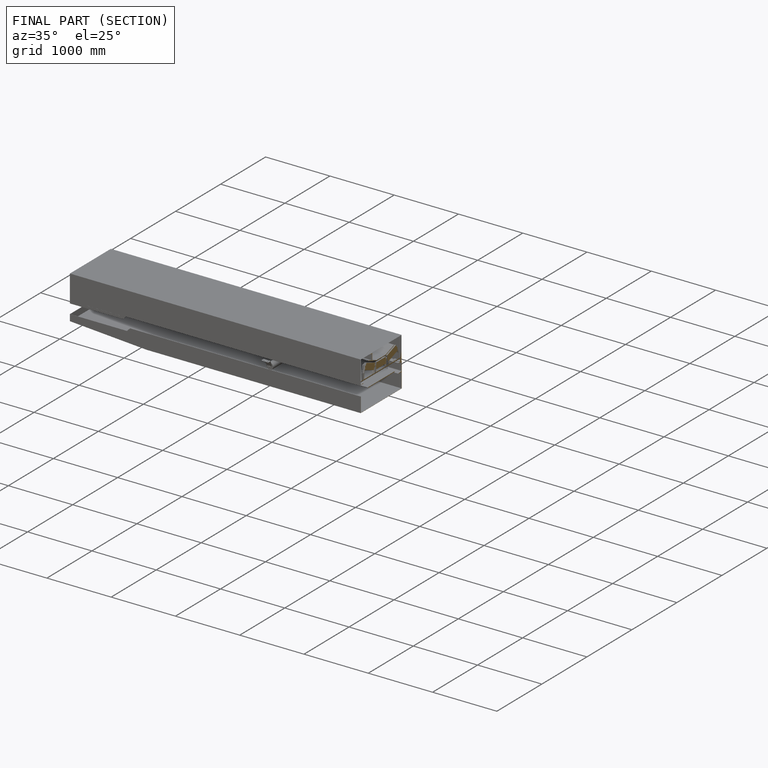
[diagram: finished part — half-section view (interior)]
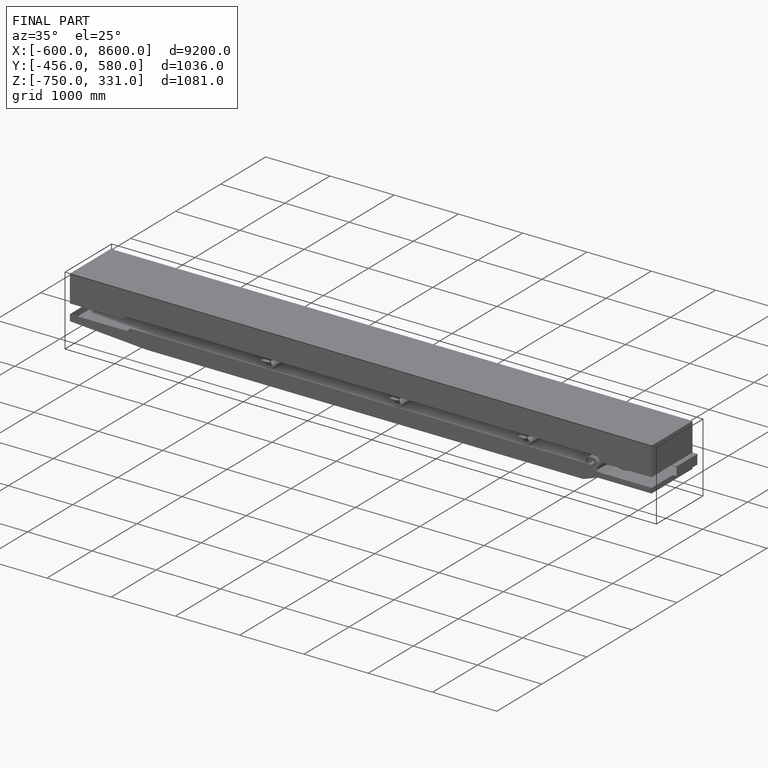
[diagram: finished part — iso view with bounding-box wireframe]
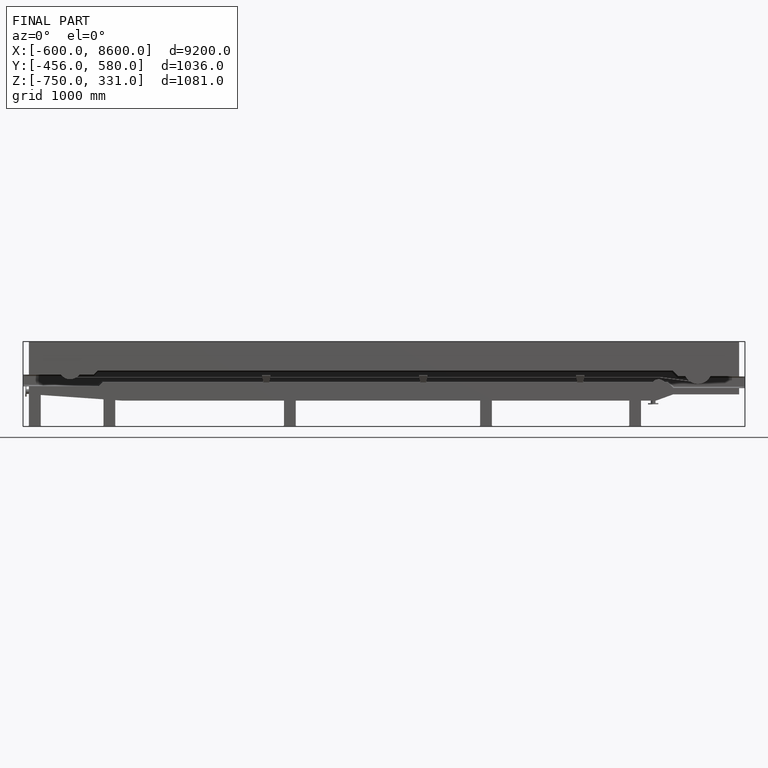
[diagram: finished part — front view with bounding-box wireframe]
